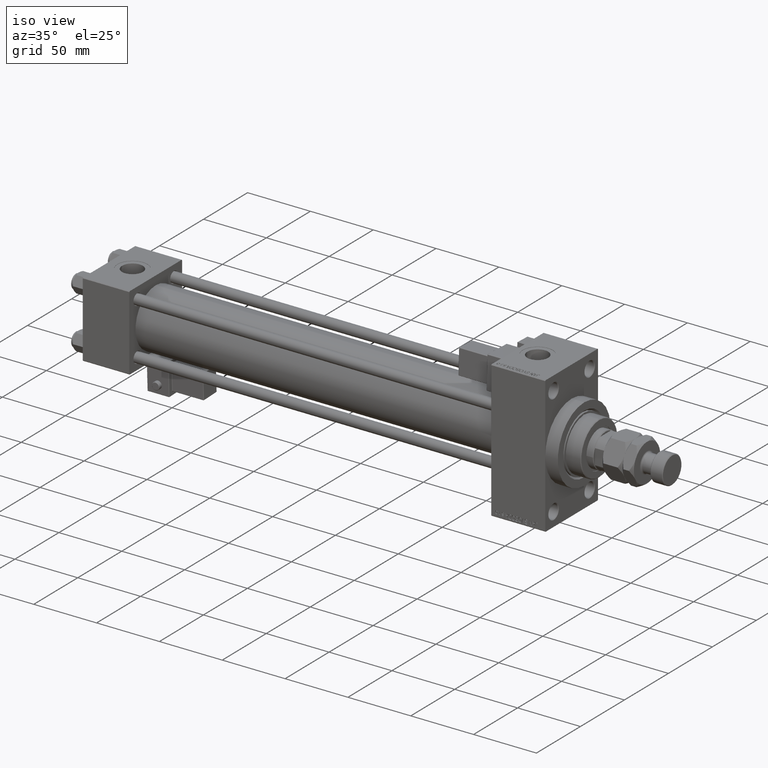
[diagram: clean part render]
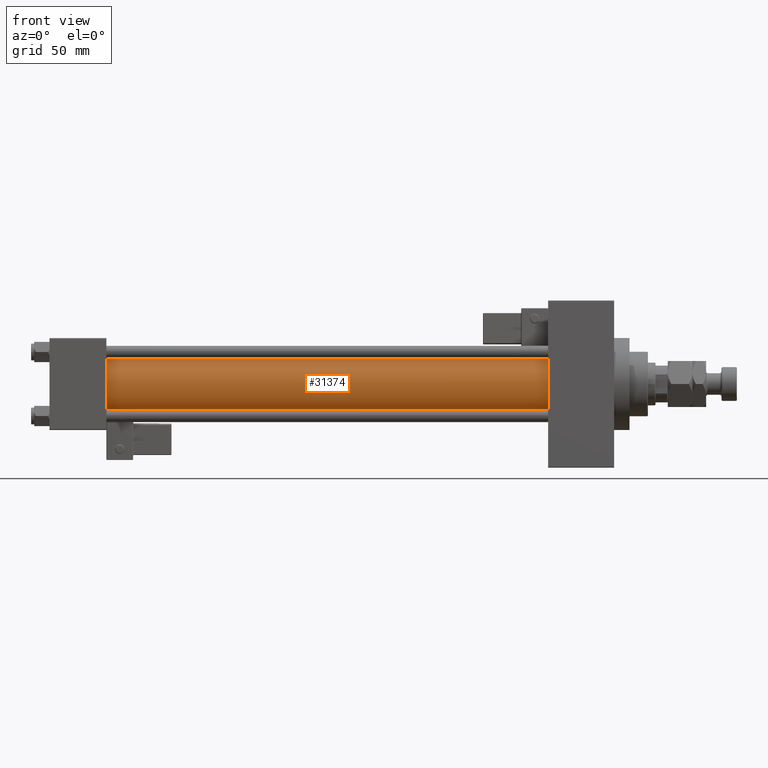
[diagram: tour spotlight — one face highlighted and labeled with its STEP entity id]
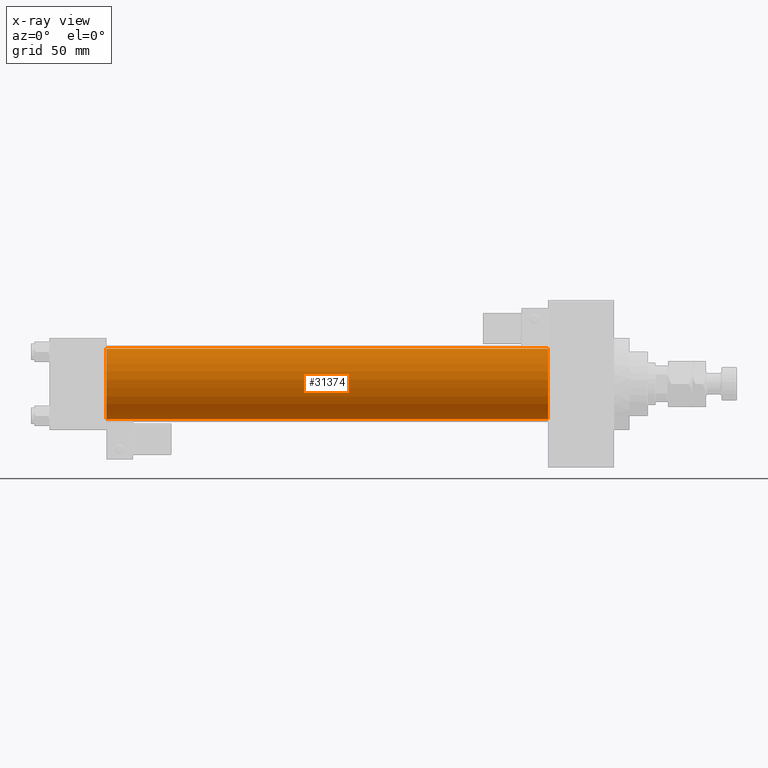
[diagram: x-ray of the same camera — body ghosted, this tour face saturated]
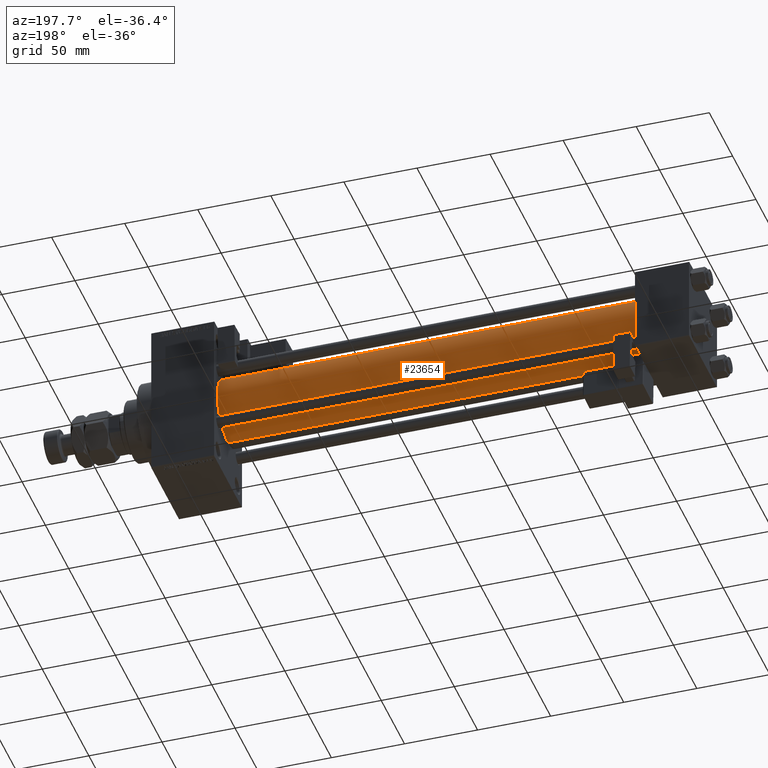
[diagram: tour spotlight — one face highlighted and labeled with its STEP entity id]
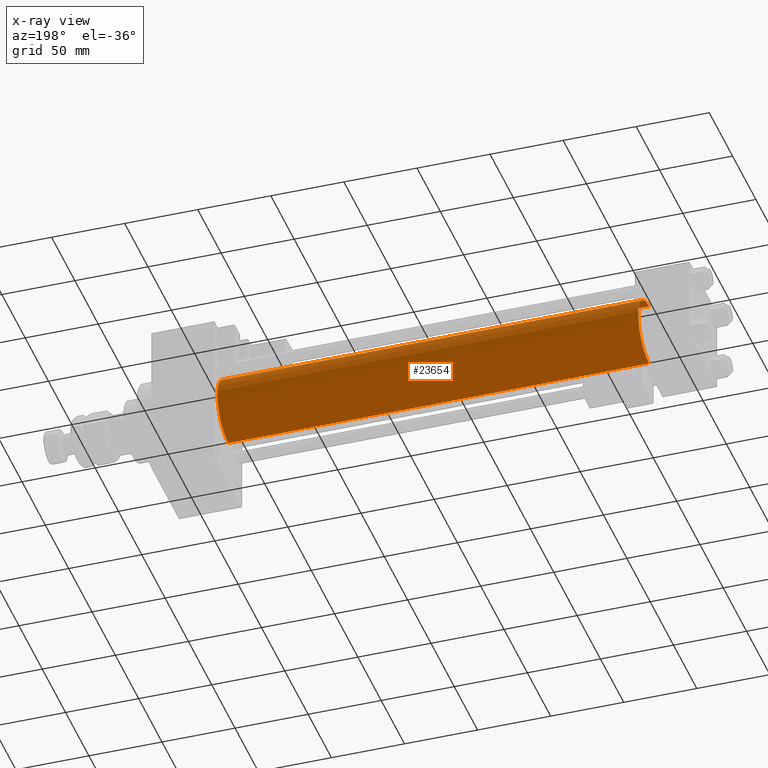
[diagram: x-ray of the same camera — body ghosted, this tour face saturated]
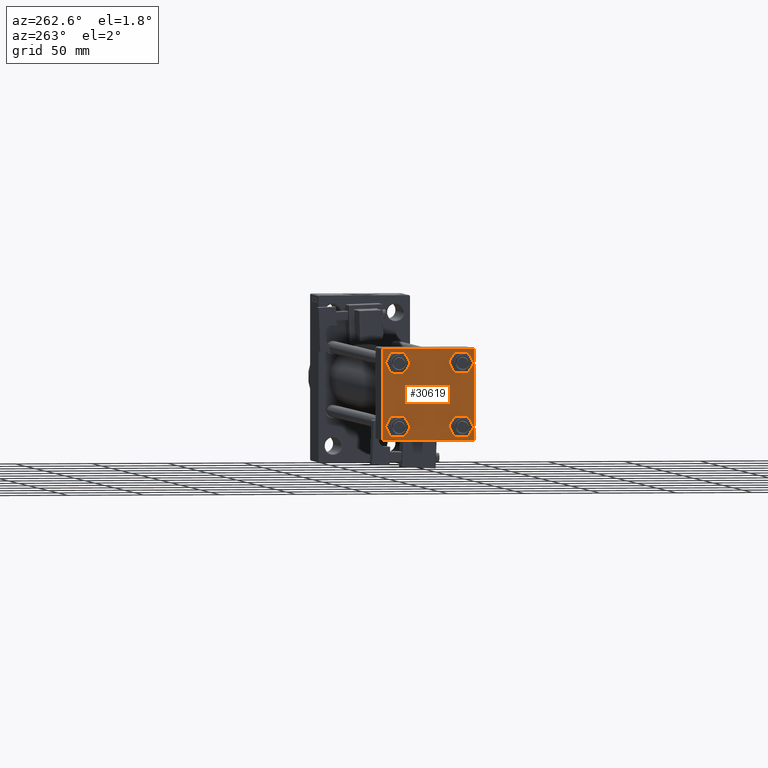
[diagram: tour spotlight — one face highlighted and labeled with its STEP entity id]
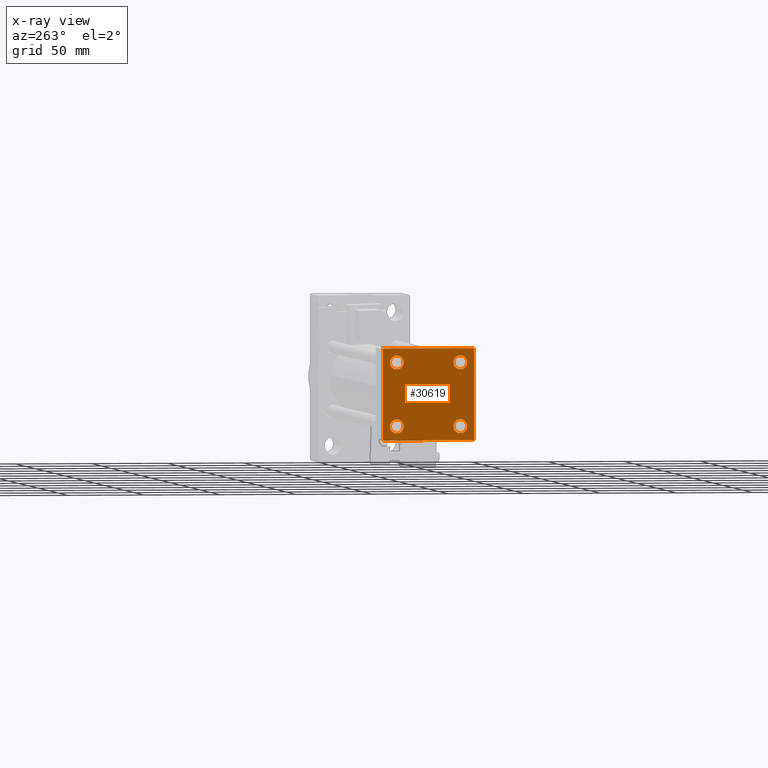
[diagram: x-ray of the same camera — body ghosted, this tour face saturated]
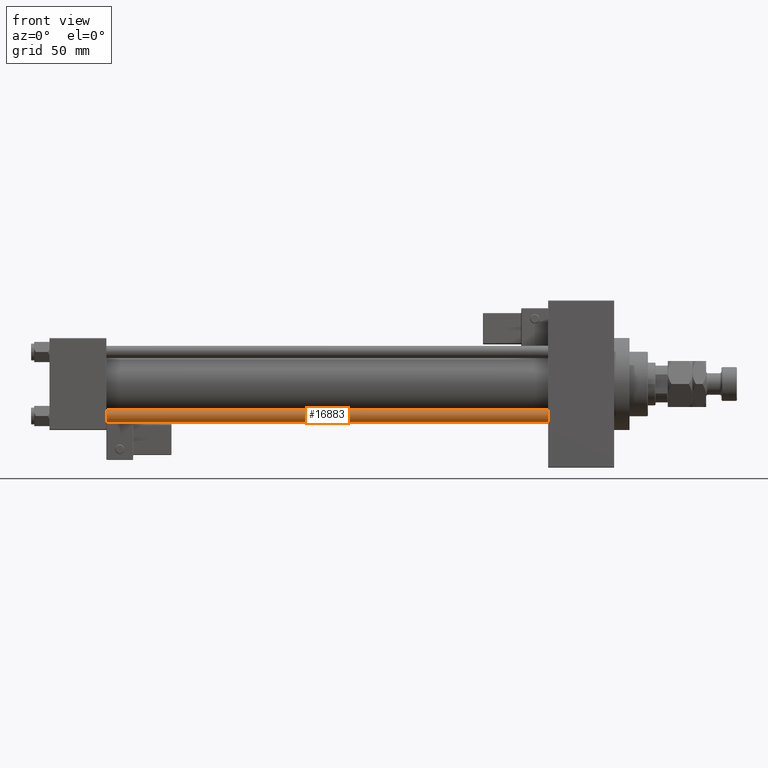
[diagram: tour spotlight — one face highlighted and labeled with its STEP entity id]
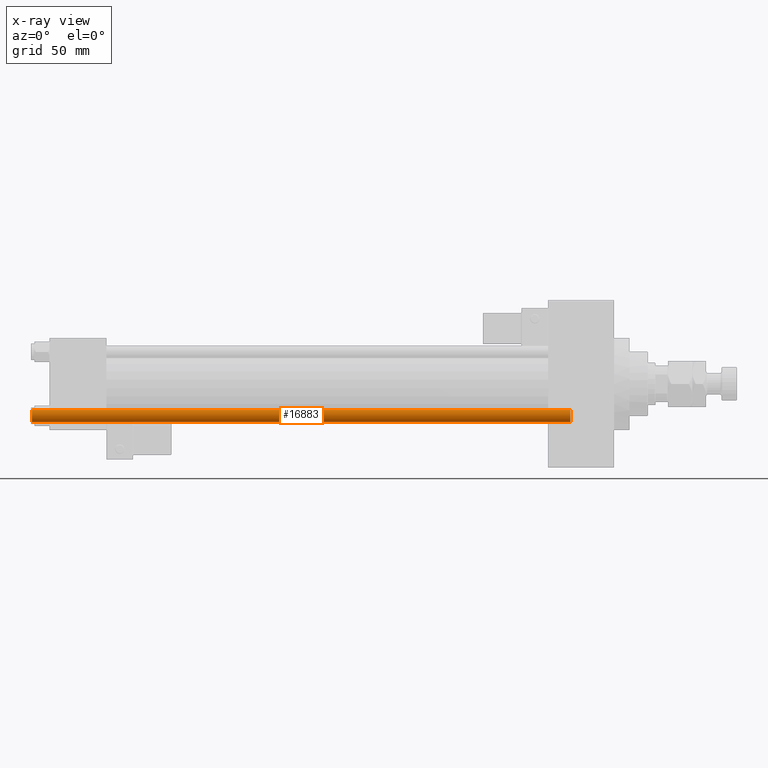
[diagram: x-ray of the same camera — body ghosted, this tour face saturated]
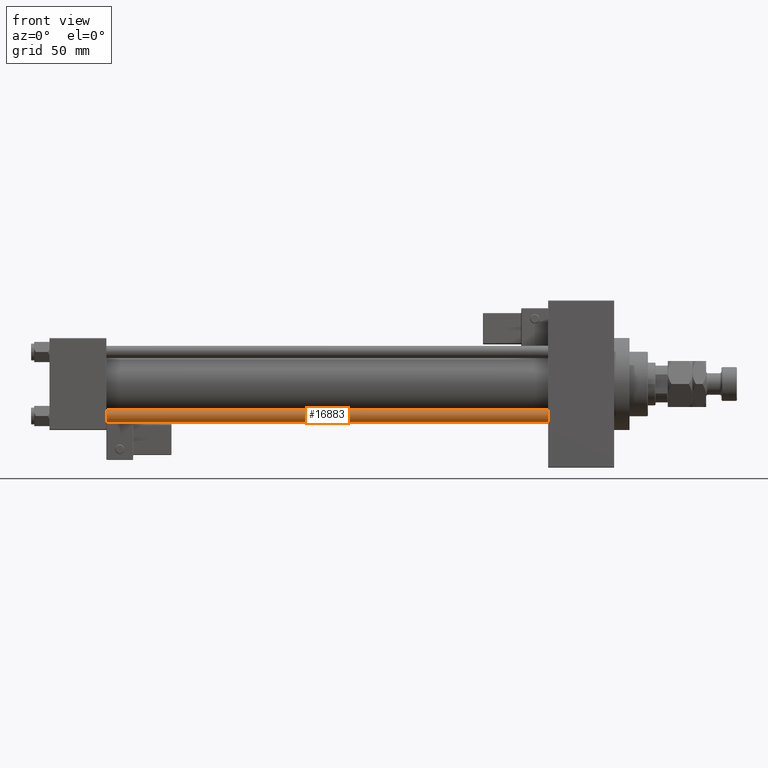
[diagram: tour spotlight — one face highlighted and labeled with its STEP entity id]
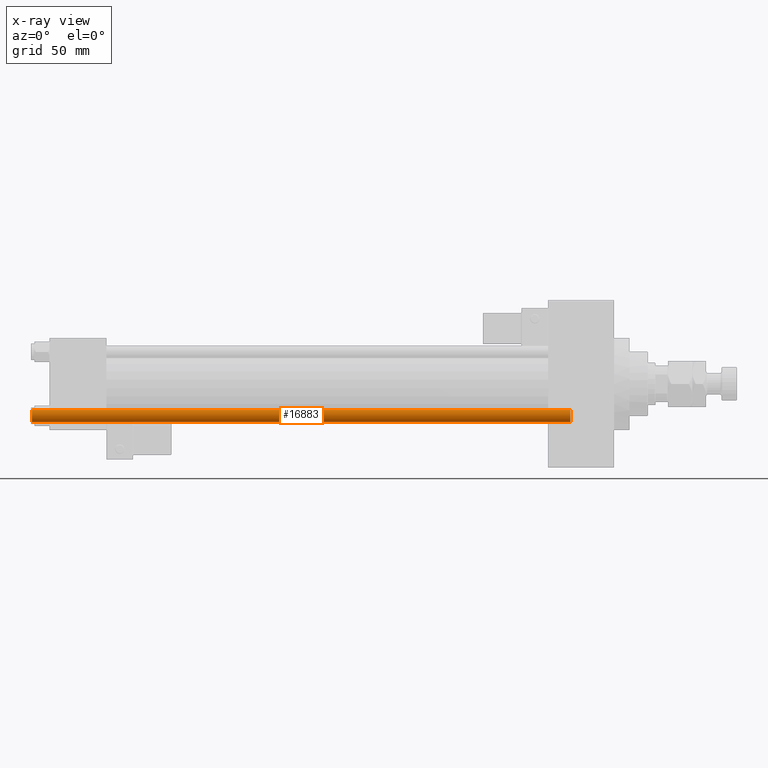
[diagram: x-ray of the same camera — body ghosted, this tour face saturated]
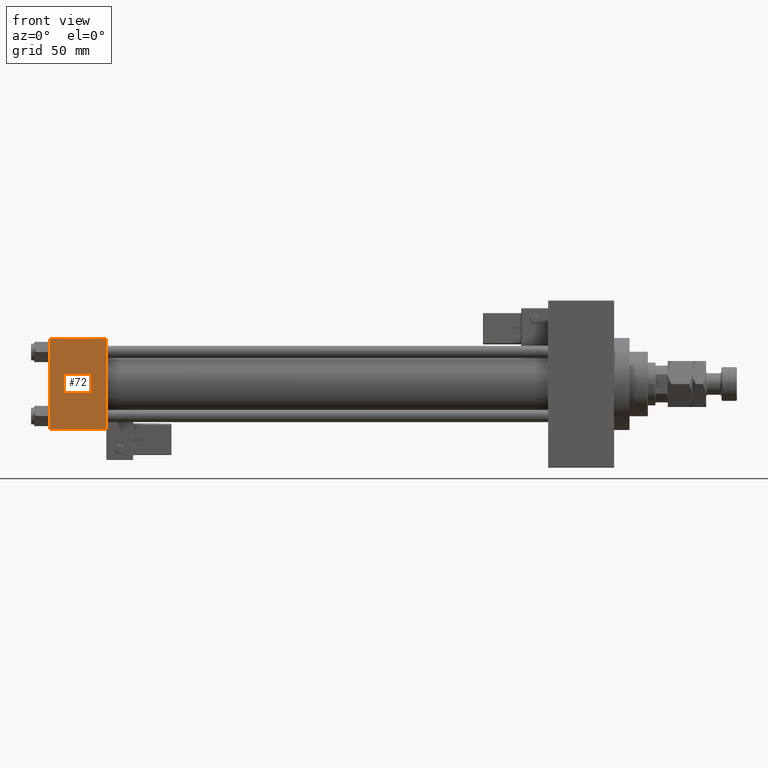
[diagram: tour spotlight — one face highlighted and labeled with its STEP entity id]
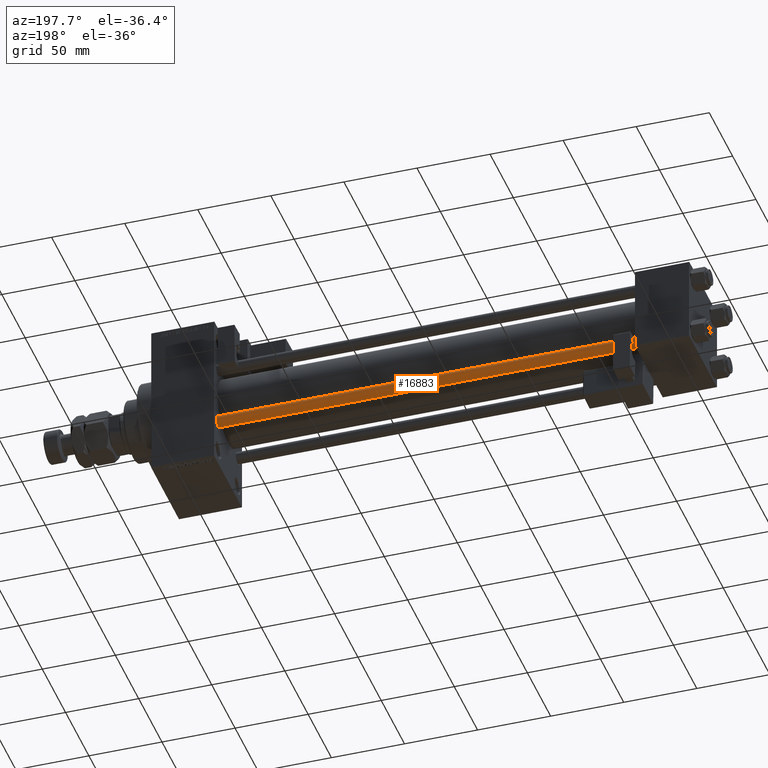
[diagram: tour spotlight — one face highlighted and labeled with its STEP entity id]
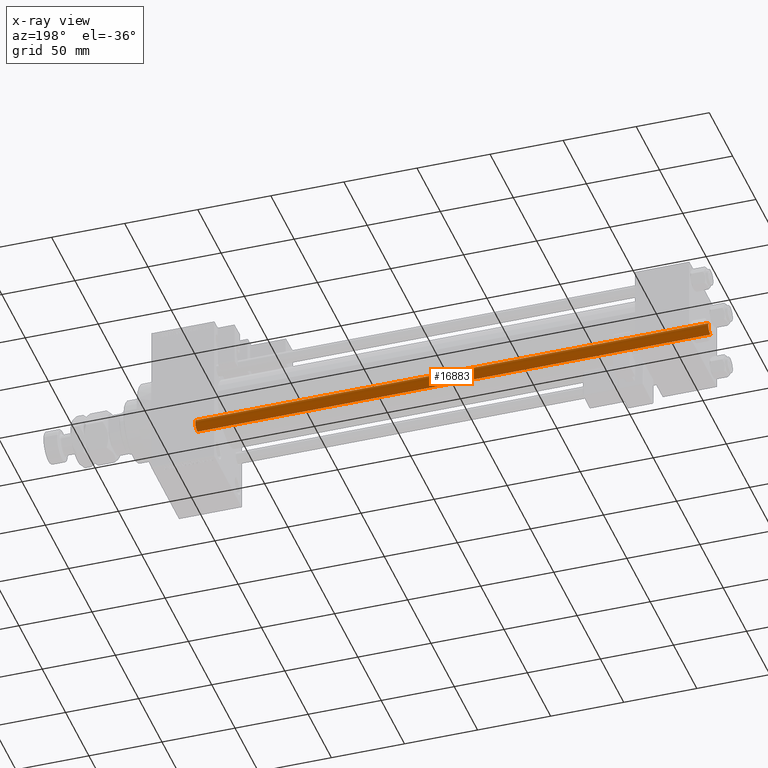
[diagram: x-ray of the same camera — body ghosted, this tour face saturated]
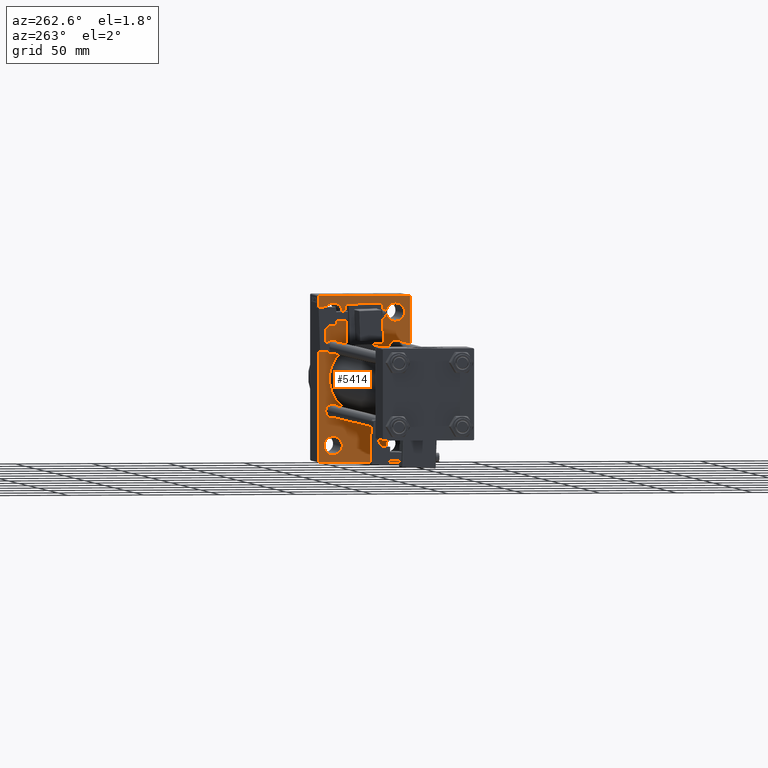
[diagram: tour spotlight — one face highlighted and labeled with its STEP entity id]
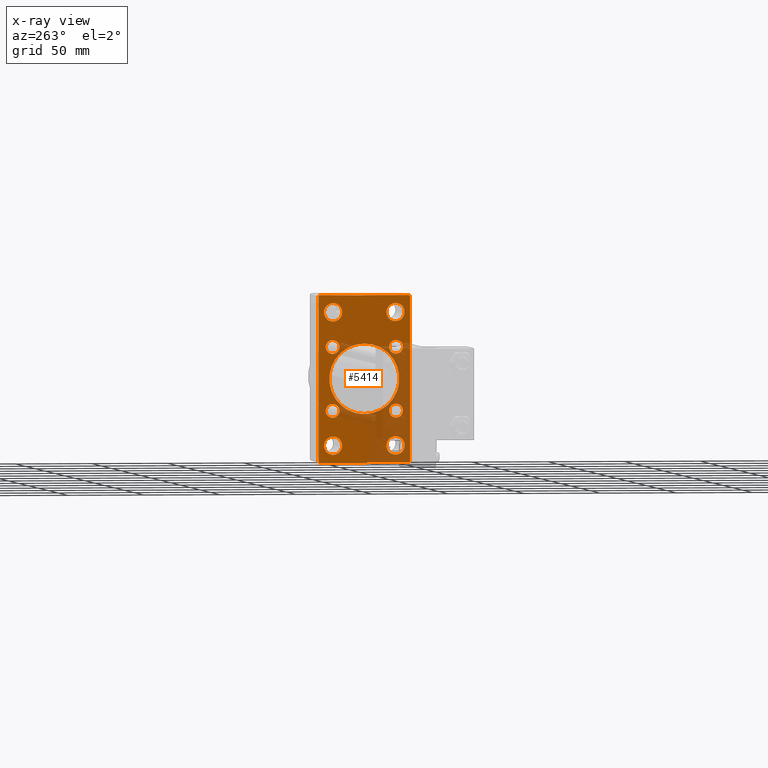
[diagram: x-ray of the same camera — body ghosted, this tour face saturated]
A machine part: a face-by-face anatomy tour. The part has 1320 B-rep faces; the first image is the clean iso view, then the 8 largest visible faces are spotlighted one at a time (largest first), each with its STEP entity span.

Face 1 — front view, entity #31374. An x-ray twin of the same camera follows (body ghosted, this face saturated) — the face is partly hidden behind the body. In plain terms, the highlighted cylindrical surface (edge-blend (fillet) strip) has radius 23 mm, axis along (-1, -0, -0).
Definition (entity closure, byte-faithful):
#1150 = DIRECTION ( 'NONE',  ( -1.000000000000000000, -0.000000000000000000, -0.000000000000000000 ) ) ;
#1564 = DIRECTION ( 'NONE',  ( 1.000000000000000000, -0.000000000000000000, 0.000000000000000000 ) ) ;
#2012 = CARTESIAN_POINT ( 'NONE',  ( 324.9999999999999432, 2.146024240737016609E-16, -23.00000000000000000 ) ) ;
#3557 = AXIS2_PLACEMENT_3D ( 'NONE', #22080, #1564, #5479 ) ;
#3870 = CARTESIAN_POINT ( 'NONE',  ( 324.9999999999999432, 2.146024240737016609E-16, -23.00000000000000000 ) ) ;
#3888 = EDGE_CURVE ( 'NONE', #31160, #18165, #27913, .T. ) ;
#5479 = DIRECTION ( 'NONE',  ( 0.000000000000000000, 0.000000000000000000, 1.000000000000000000 ) ) ;
#7216 = CARTESIAN_POINT ( 'NONE',  ( 324.9999999999999432, -2.602085213965210642E-15, 0.000000000000000000 ) ) ;
#8684 = ORIENTED_EDGE ( 'NONE', *, *, #9273, .F. ) ;
#9273 = EDGE_CURVE ( 'NONE', #31160, #33191, #31425, .T. ) ;
#9808 = DIRECTION ( 'NONE',  ( -1.000000000000000000, -0.000000000000000000, -0.000000000000000000 ) ) ;
#11866 = ORIENTED_EDGE ( 'NONE', *, *, #3888, .T. ) ;
#13090 = CARTESIAN_POINT ( 'NONE',  ( 324.9999999999999432, -2.602085213965210642E-15, 23.00000000000000000 ) ) ;
#13422 = CARTESIAN_POINT ( 'NONE',  ( 36.99999999999997868, -2.602085213965210642E-15, 23.00000000000000000 ) ) ;
#18087 = DIRECTION ( 'NONE',  ( 0.000000000000000000, 0.000000000000000000, -1.000000000000000000 ) ) ;
#18165 = VERTEX_POINT ( 'NONE', #13422 ) ;
#19814 = AXIS2_PLACEMENT_3D ( 'NONE', #34183, #38614, #18087 ) ;
#20093 = ORIENTED_EDGE ( 'NONE', *, *, #31212, .F. ) ;
#22080 = CARTESIAN_POINT ( 'NONE',  ( 36.99999999999997868, -2.602085213965210642E-15, 0.000000000000000000 ) ) ;
#22393 = VERTEX_POINT ( 'NONE', #44721 ) ;
#23059 = FACE_OUTER_BOUND ( 'NONE', #35448, .T. ) ;
#25262 = VECTOR ( 'NONE', #9808, 1000.000000000000000 ) ;
#27913 = LINE ( 'NONE', #13090, #45454 ) ;
#28060 = EDGE_CURVE ( 'NONE', #18165, #22393, #33381, .T. ) ;
#31160 = VERTEX_POINT ( 'NONE', #32241 ) ;
#31212 = EDGE_CURVE ( 'NONE', #33191, #22393, #45409, .T. ) ;
#31374 = ADVANCED_FACE ( 'NONE', ( #23059 ), #31602, .T. ) ;
#31425 = CIRCLE ( 'NONE', #19814, 23.00000000000000000 ) ;
#31602 = CYLINDRICAL_SURFACE ( 'NONE', #49322, 23.00000000000000000 ) ;
#31860 = DIRECTION ( 'NONE',  ( 0.000000000000000000, 0.000000000000000000, 1.000000000000000000 ) ) ;
#32241 = CARTESIAN_POINT ( 'NONE',  ( 324.9999999999999432, -2.602085213965210642E-15, 23.00000000000000000 ) ) ;
#33191 = VERTEX_POINT ( 'NONE', #3870 ) ;
#33381 = CIRCLE ( 'NONE', #3557, 23.00000000000000000 ) ;
#34183 = CARTESIAN_POINT ( 'NONE',  ( 324.9999999999999432, -2.602085213965210642E-15, 0.000000000000000000 ) ) ;
#35448 = EDGE_LOOP ( 'NONE', ( #20093, #8684, #11866, #49783 ) ) ;
#35759 = DIRECTION ( 'NONE',  ( -1.000000000000000000, -0.000000000000000000, -0.000000000000000000 ) ) ;
#38614 = DIRECTION ( 'NONE',  ( 1.000000000000000000, 0.000000000000000000, 0.000000000000000000 ) ) ;
#44721 = CARTESIAN_POINT ( 'NONE',  ( 36.99999999999997868, 2.146024240737016609E-16, -23.00000000000000000 ) ) ;
#45409 = LINE ( 'NONE', #2012, #25262 ) ;
#45454 = VECTOR ( 'NONE', #1150, 1000.000000000000000 ) ;
#49322 = AXIS2_PLACEMENT_3D ( 'NONE', #7216, #35759, #31860 ) ;
#49783 = ORIENTED_EDGE ( 'NONE', *, *, #28060, .T. ) ;

Face 2 — auxiliary view, entity #23654. An x-ray twin of the same camera follows (body ghosted, this face saturated) — the face is partly hidden behind the body. In plain terms, the highlighted cylindrical surface (edge-blend (fillet) strip) has radius 23 mm, axis along (-1, -0, -0).
Definition (entity closure, byte-faithful):
#147 = EDGE_CURVE ( 'NONE', #33191, #31160, #29952, .T. ) ;
#207 = AXIS2_PLACEMENT_3D ( 'NONE', #38401, #38145, #10600 ) ;
#277 = AXIS2_PLACEMENT_3D ( 'NONE', #18206, #34050, #49928 ) ;
#1150 = DIRECTION ( 'NONE',  ( -1.000000000000000000, -0.000000000000000000, -0.000000000000000000 ) ) ;
#2012 = CARTESIAN_POINT ( 'NONE',  ( 324.9999999999999432, 2.146024240737016609E-16, -23.00000000000000000 ) ) ;
#3870 = CARTESIAN_POINT ( 'NONE',  ( 324.9999999999999432, 2.146024240737016609E-16, -23.00000000000000000 ) ) ;
#3888 = EDGE_CURVE ( 'NONE', #31160, #18165, #27913, .T. ) ;
#6665 = DIRECTION ( 'NONE',  ( 0.000000000000000000, 0.000000000000000000, -1.000000000000000000 ) ) ;
#7181 = CARTESIAN_POINT ( 'NONE',  ( 324.9999999999999432, -2.602085213965210642E-15, 0.000000000000000000 ) ) ;
#9808 = DIRECTION ( 'NONE',  ( -1.000000000000000000, -0.000000000000000000, -0.000000000000000000 ) ) ;
#10600 = DIRECTION ( 'NONE',  ( 0.000000000000000000, 0.000000000000000000, 1.000000000000000000 ) ) ;
#13090 = CARTESIAN_POINT ( 'NONE',  ( 324.9999999999999432, -2.602085213965210642E-15, 23.00000000000000000 ) ) ;
#13422 = CARTESIAN_POINT ( 'NONE',  ( 36.99999999999997868, -2.602085213965210642E-15, 23.00000000000000000 ) ) ;
#14197 = AXIS2_PLACEMENT_3D ( 'NONE', #7181, #23021, #6665 ) ;
#15027 = CYLINDRICAL_SURFACE ( 'NONE', #207, 23.00000000000000000 ) ;
#18165 = VERTEX_POINT ( 'NONE', #13422 ) ;
#18206 = CARTESIAN_POINT ( 'NONE',  ( 36.99999999999997868, -2.602085213965210642E-15, 0.000000000000000000 ) ) ;
#22393 = VERTEX_POINT ( 'NONE', #44721 ) ;
#23021 = DIRECTION ( 'NONE',  ( 1.000000000000000000, 0.000000000000000000, 0.000000000000000000 ) ) ;
#23249 = ORIENTED_EDGE ( 'NONE', *, *, #3888, .F. ) ;
#23654 = ADVANCED_FACE ( 'NONE', ( #34494 ), #15027, .T. ) ;
#25262 = VECTOR ( 'NONE', #9808, 1000.000000000000000 ) ;
#25735 = EDGE_CURVE ( 'NONE', #22393, #18165, #42609, .T. ) ;
#27913 = LINE ( 'NONE', #13090, #45454 ) ;
#29952 = CIRCLE ( 'NONE', #14197, 23.00000000000000000 ) ;
#31160 = VERTEX_POINT ( 'NONE', #32241 ) ;
#31212 = EDGE_CURVE ( 'NONE', #33191, #22393, #45409, .T. ) ;
#32241 = CARTESIAN_POINT ( 'NONE',  ( 324.9999999999999432, -2.602085213965210642E-15, 23.00000000000000000 ) ) ;
#33191 = VERTEX_POINT ( 'NONE', #3870 ) ;
#34050 = DIRECTION ( 'NONE',  ( 1.000000000000000000, -0.000000000000000000, 0.000000000000000000 ) ) ;
#34494 = FACE_OUTER_BOUND ( 'NONE', #35952, .T. ) ;
#35952 = EDGE_LOOP ( 'NONE', ( #39029, #48558, #37160, #23249 ) ) ;
#37160 = ORIENTED_EDGE ( 'NONE', *, *, #25735, .T. ) ;
#38145 = DIRECTION ( 'NONE',  ( -1.000000000000000000, -0.000000000000000000, -0.000000000000000000 ) ) ;
#38401 = CARTESIAN_POINT ( 'NONE',  ( 324.9999999999999432, -2.602085213965210642E-15, 0.000000000000000000 ) ) ;
#39029 = ORIENTED_EDGE ( 'NONE', *, *, #147, .F. ) ;
#42609 = CIRCLE ( 'NONE', #277, 23.00000000000000000 ) ;
#44721 = CARTESIAN_POINT ( 'NONE',  ( 36.99999999999997868, 2.146024240737016609E-16, -23.00000000000000000 ) ) ;
#45409 = LINE ( 'NONE', #2012, #25262 ) ;
#45454 = VECTOR ( 'NONE', #1150, 1000.000000000000000 ) ;
#48558 = ORIENTED_EDGE ( 'NONE', *, *, #31212, .T. ) ;
#49928 = DIRECTION ( 'NONE',  ( 0.000000000000000000, 0.000000000000000000, 1.000000000000000000 ) ) ;

Face 3 — auxiliary view, entity #30619. An x-ray twin of the same camera follows (body ghosted, this face saturated) — the face is partly hidden behind the body. In plain terms, the highlighted planar face has unit normal (-1, 0, 0).
Definition (entity closure, byte-faithful):
#129 = CARTESIAN_POINT ( 'NONE',  ( 0.000000000000000000, 29.49999999999999289, 30.00000000000000000 ) ) ;
#556 = LINE ( 'NONE', #48133, #48176 ) ;
#832 = EDGE_CURVE ( 'NONE', #6773, #7968, #12606, .T. ) ;
#958 = EDGE_CURVE ( 'NONE', #16281, #8290, #12662, .T. ) ;
#1370 = VECTOR ( 'NONE', #20330, 1000.000000000000000 ) ;
#1547 = LINE ( 'NONE', #8827, #9812 ) ;
#1693 = CARTESIAN_POINT ( 'NONE',  ( 0.000000000000000000, -20.84999999999999076, 25.35000000000002274 ) ) ;
#1902 = AXIS2_PLACEMENT_3D ( 'NONE', #35318, #22604, #43138 ) ;
#2212 = EDGE_CURVE ( 'NONE', #10136, #31654, #4387, .T. ) ;
#3161 = CARTESIAN_POINT ( 'NONE',  ( 0.000000000000000000, -30.00000000000000000, 29.99999999999999289 ) ) ;
#3830 = ORIENTED_EDGE ( 'NONE', *, *, #39903, .T. ) ;
#4387 = CIRCLE ( 'NONE', #15176, 4.500000000000017764 ) ;
#4905 = ORIENTED_EDGE ( 'NONE', *, *, #832, .T. ) ;
#5023 = LINE ( 'NONE', #25945, #1370 ) ;
#5037 = EDGE_LOOP ( 'NONE', ( #4905, #37603 ) ) ;
#5359 = EDGE_LOOP ( 'NONE', ( #30913, #16975 ) ) ;
#6092 = EDGE_CURVE ( 'NONE', #46828, #8290, #22642, .T. ) ;
#6303 = CARTESIAN_POINT ( 'NONE',  ( 0.000000000000000000, 29.99999999999999289, 30.00000000000000000 ) ) ;
#6664 = EDGE_CURVE ( 'NONE', #48302, #16281, #26659, .T. ) ;
#6773 = VERTEX_POINT ( 'NONE', #18223 ) ;
#7632 = VECTOR ( 'NONE', #16063, 1000.000000000000114 ) ;
#7700 = EDGE_CURVE ( 'NONE', #23694, #17750, #47994, .T. ) ;
#7905 = FACE_BOUND ( 'NONE', #5359, .T. ) ;
#7968 = VERTEX_POINT ( 'NONE', #26182 ) ;
#8290 = VERTEX_POINT ( 'NONE', #34438 ) ;
#8787 = CARTESIAN_POINT ( 'NONE',  ( 0.000000000000000000, -20.84999999999999076, 20.85000000000000497 ) ) ;
#8827 = CARTESIAN_POINT ( 'NONE',  ( 0.000000000000000000, 29.74999999999957723, -29.75000000000040501 ) ) ;
#9045 = VERTEX_POINT ( 'NONE', #19947 ) ;
#9214 = LINE ( 'NONE', #34644, #38061 ) ;
#9561 = EDGE_CURVE ( 'NONE', #46828, #9045, #9214, .T. ) ;
#9812 = VECTOR ( 'NONE', #41048, 999.9999999999998863 ) ;
#10113 = AXIS2_PLACEMENT_3D ( 'NONE', #45966, #37894, #33994 ) ;
#10136 = VERTEX_POINT ( 'NONE', #43051 ) ;
#10757 = ORIENTED_EDGE ( 'NONE', *, *, #7700, .T. ) ;
#10901 = DIRECTION ( 'NONE',  ( 0.000000000000000000, 0.000000000000000000, 1.000000000000000000 ) ) ;
#11526 = CARTESIAN_POINT ( 'NONE',  ( 0.000000000000000000, 29.49999999999997868, -30.00000000000000000 ) ) ;
#12320 = EDGE_CURVE ( 'NONE', #46113, #23936, #556, .T. ) ;
#12606 = CIRCLE ( 'NONE', #10113, 4.500000000000017764 ) ;
#12662 = LINE ( 'NONE', #44121, #7632 ) ;
#13668 = CARTESIAN_POINT ( 'NONE',  ( 0.000000000000000000, 29.99999999999999289, 29.50000000000000000 ) ) ;
#13901 = DIRECTION ( 'NONE',  ( 0.000000000000000000, 0.000000000000000000, 1.000000000000000000 ) ) ;
#14177 = AXIS2_PLACEMENT_3D ( 'NONE', #14862, #22132, #30698 ) ;
#14367 = EDGE_LOOP ( 'NONE', ( #28608, #17355 ) ) ;
#14468 = EDGE_LOOP ( 'NONE', ( #10757, #32757 ) ) ;
#14657 = FACE_BOUND ( 'NONE', #14468, .T. ) ;
#14862 = CARTESIAN_POINT ( 'NONE',  ( 0.000000000000000000, 20.84999999999999787, -20.85000000000000142 ) ) ;
#15176 = AXIS2_PLACEMENT_3D ( 'NONE', #36794, #33644, #13901 ) ;
#15649 = CIRCLE ( 'NONE', #44686, 4.500000000000017764 ) ;
#16063 = DIRECTION ( 'NONE',  ( 0.000000000000000000, -0.7071067811865474617, 0.7071067811865474617 ) ) ;
#16281 = VERTEX_POINT ( 'NONE', #28085 ) ;
#16956 = DIRECTION ( 'NONE',  ( 0.000000000000000000, 0.000000000000000000, 1.000000000000000000 ) ) ;
#16975 = ORIENTED_EDGE ( 'NONE', *, *, #21298, .T. ) ;
#17223 = DIRECTION ( 'NONE',  ( 0.000000000000000000, -1.000000000000000000, -1.156482317317871725E-16 ) ) ;
#17355 = ORIENTED_EDGE ( 'NONE', *, *, #28339, .T. ) ;
#17450 = CARTESIAN_POINT ( 'NONE',  ( 0.000000000000000000, -20.84999999999999076, -20.85000000000000497 ) ) ;
#17666 = AXIS2_PLACEMENT_3D ( 'NONE', #8787, #21771, #40489 ) ;
#17750 = VERTEX_POINT ( 'NONE', #49362 ) ;
#18223 = CARTESIAN_POINT ( 'NONE',  ( 0.000000000000000000, 20.84999999999999787, 25.35000000000001918 ) ) ;
#18432 = VERTEX_POINT ( 'NONE', #28442 ) ;
#19076 = FACE_BOUND ( 'NONE', #14367, .T. ) ;
#19136 = DIRECTION ( 'NONE',  ( 0.000000000000000000, -1.000000000000000000, -1.156482317317871725E-16 ) ) ;
#19947 = CARTESIAN_POINT ( 'NONE',  ( 0.000000000000000000, -29.49999999999998579, 29.99999999999999289 ) ) ;
#20214 = AXIS2_PLACEMENT_3D ( 'NONE', #46375, #31534, #43248 ) ;
#20330 = DIRECTION ( 'NONE',  ( 0.000000000000000000, 0.000000000000000000, -1.000000000000000000 ) ) ;
#20859 = ORIENTED_EDGE ( 'NONE', *, *, #6092, .F. ) ;
#21298 = EDGE_CURVE ( 'NONE', #31654, #10136, #29931, .T. ) ;
#21379 = VECTOR ( 'NONE', #19136, 1000.000000000000000 ) ;
#21771 = DIRECTION ( 'NONE',  ( 1.000000000000000000, -0.000000000000000000, 0.000000000000000000 ) ) ;
#22132 = DIRECTION ( 'NONE',  ( 1.000000000000000000, -0.000000000000000000, 0.000000000000000000 ) ) ;
#22604 = DIRECTION ( 'NONE',  ( 1.000000000000000000, -0.000000000000000000, 0.000000000000000000 ) ) ;
#22642 = LINE ( 'NONE', #3161, #23833 ) ;
#23694 = VERTEX_POINT ( 'NONE', #46739 ) ;
#23833 = VECTOR ( 'NONE', #38749, 1000.000000000000000 ) ;
#23936 = VERTEX_POINT ( 'NONE', #13668 ) ;
#24449 = CARTESIAN_POINT ( 'NONE',  ( 0.000000000000000000, -20.84999999999999076, 16.34999999999998721 ) ) ;
#25288 = ORIENTED_EDGE ( 'NONE', *, *, #47825, .T. ) ;
#25945 = CARTESIAN_POINT ( 'NONE',  ( 0.000000000000000000, 29.99999999999999289, 30.00000000000000000 ) ) ;
#26034 = ORIENTED_EDGE ( 'NONE', *, *, #6664, .T. ) ;
#26182 = CARTESIAN_POINT ( 'NONE',  ( 0.000000000000000000, 20.84999999999999787, 16.34999999999998366 ) ) ;
#26659 = LINE ( 'NONE', #42533, #21379 ) ;
#28085 = CARTESIAN_POINT ( 'NONE',  ( 0.000000000000000000, -29.50000000000000000, -30.00000000000000711 ) ) ;
#28158 = EDGE_LOOP ( 'NONE', ( #3830, #25288, #26034, #40508, #20859, #32417, #36325, #28716 ) ) ;
#28339 = EDGE_CURVE ( 'NONE', #49274, #40654, #31788, .T. ) ;
#28442 = CARTESIAN_POINT ( 'NONE',  ( 0.000000000000000000, 29.99999999999999289, -29.50000000000000000 ) ) ;
#28608 = ORIENTED_EDGE ( 'NONE', *, *, #38480, .T. ) ;
#28716 = ORIENTED_EDGE ( 'NONE', *, *, #12320, .T. ) ;
#28986 = EDGE_CURVE ( 'NONE', #17750, #23694, #39266, .T. ) ;
#29931 = CIRCLE ( 'NONE', #14177, 4.500000000000017764 ) ;
#30619 = ADVANCED_FACE ( 'NONE', ( #19076, #14657, #7905, #50275, #39347 ), #47406, .T. ) ;
#30698 = DIRECTION ( 'NONE',  ( 0.000000000000000000, 0.000000000000000000, 1.000000000000000000 ) ) ;
#30910 = EDGE_CURVE ( 'NONE', #46113, #9045, #33821, .T. ) ;
#30913 = ORIENTED_EDGE ( 'NONE', *, *, #2212, .T. ) ;
#31534 = DIRECTION ( 'NONE',  ( -1.000000000000000000, 0.000000000000000000, -0.000000000000000000 ) ) ;
#31654 = VERTEX_POINT ( 'NONE', #47671 ) ;
#31788 = CIRCLE ( 'NONE', #17666, 4.500000000000017764 ) ;
#31874 = VECTOR ( 'NONE', #17223, 1000.000000000000000 ) ;
#32417 = ORIENTED_EDGE ( 'NONE', *, *, #9561, .T. ) ;
#32757 = ORIENTED_EDGE ( 'NONE', *, *, #28986, .T. ) ;
#33644 = DIRECTION ( 'NONE',  ( 1.000000000000000000, -0.000000000000000000, 0.000000000000000000 ) ) ;
#33821 = LINE ( 'NONE', #6303, #31874 ) ;
#33994 = DIRECTION ( 'NONE',  ( 0.000000000000000000, 0.000000000000000000, 1.000000000000000000 ) ) ;
#34438 = CARTESIAN_POINT ( 'NONE',  ( 0.000000000000000000, -30.00000000000000000, -29.50000000000001776 ) ) ;
#34644 = CARTESIAN_POINT ( 'NONE',  ( -0.000000000000000000, -29.74999999999999645, 29.74999999999999645 ) ) ;
#35318 = CARTESIAN_POINT ( 'NONE',  ( 0.000000000000000000, -20.84999999999999076, -20.85000000000000497 ) ) ;
#36325 = ORIENTED_EDGE ( 'NONE', *, *, #30910, .F. ) ;
#36794 = CARTESIAN_POINT ( 'NONE',  ( 0.000000000000000000, 20.84999999999999787, -20.85000000000000142 ) ) ;
#37215 = CARTESIAN_POINT ( 'NONE',  ( 0.000000000000000000, 20.84999999999999787, 20.85000000000000142 ) ) ;
#37449 = DIRECTION ( 'NONE',  ( 1.000000000000000000, -0.000000000000000000, 0.000000000000000000 ) ) ;
#37603 = ORIENTED_EDGE ( 'NONE', *, *, #48364, .T. ) ;
#37894 = DIRECTION ( 'NONE',  ( 1.000000000000000000, -0.000000000000000000, 0.000000000000000000 ) ) ;
#37981 = AXIS2_PLACEMENT_3D ( 'NONE', #17450, #37449, #38732 ) ;
#38061 = VECTOR ( 'NONE', #49492, 1000.000000000000114 ) ;
#38480 = EDGE_CURVE ( 'NONE', #40654, #49274, #43786, .T. ) ;
#38702 = CARTESIAN_POINT ( 'NONE',  ( 0.000000000000000000, -20.84999999999999076, 20.85000000000000497 ) ) ;
#38732 = DIRECTION ( 'NONE',  ( 0.000000000000000000, 0.000000000000000000, 1.000000000000000000 ) ) ;
#38749 = DIRECTION ( 'NONE',  ( 0.000000000000000000, 0.000000000000000000, -1.000000000000000000 ) ) ;
#39266 = CIRCLE ( 'NONE', #1902, 4.500000000000017764 ) ;
#39347 = FACE_OUTER_BOUND ( 'NONE', #28158, .T. ) ;
#39903 = EDGE_CURVE ( 'NONE', #23936, #18432, #5023, .T. ) ;
#40489 = DIRECTION ( 'NONE',  ( 0.000000000000000000, 0.000000000000000000, 1.000000000000000000 ) ) ;
#40508 = ORIENTED_EDGE ( 'NONE', *, *, #958, .T. ) ;
#40654 = VERTEX_POINT ( 'NONE', #1693 ) ;
#40720 = CARTESIAN_POINT ( 'NONE',  ( 0.000000000000000000, -30.00000000000000000, 29.49999999999999289 ) ) ;
#41048 = DIRECTION ( 'NONE',  ( -0.000000000000000000, -0.7071067811865574537, -0.7071067811865376918 ) ) ;
#41080 = DIRECTION ( 'NONE',  ( 0.000000000000000000, 0.7071067811865474617, -0.7071067811865474617 ) ) ;
#42533 = CARTESIAN_POINT ( 'NONE',  ( 0.000000000000000000, 29.99999999999999289, -30.00000000000000000 ) ) ;
#43051 = CARTESIAN_POINT ( 'NONE',  ( 0.000000000000000000, 20.84999999999999787, -16.34999999999998366 ) ) ;
#43138 = DIRECTION ( 'NONE',  ( 0.000000000000000000, 0.000000000000000000, 1.000000000000000000 ) ) ;
#43248 = DIRECTION ( 'NONE',  ( -0.000000000000000000, 0.000000000000000000, 1.000000000000000000 ) ) ;
#43786 = CIRCLE ( 'NONE', #48763, 4.500000000000017764 ) ;
#44121 = CARTESIAN_POINT ( 'NONE',  ( 0.000000000000000000, -29.75000000000001066, -29.75000000000001066 ) ) ;
#44686 = AXIS2_PLACEMENT_3D ( 'NONE', #37215, #44757, #16956 ) ;
#44757 = DIRECTION ( 'NONE',  ( 1.000000000000000000, -0.000000000000000000, 0.000000000000000000 ) ) ;
#45966 = CARTESIAN_POINT ( 'NONE',  ( 0.000000000000000000, 20.84999999999999787, 20.85000000000000142 ) ) ;
#46113 = VERTEX_POINT ( 'NONE', #129 ) ;
#46375 = CARTESIAN_POINT ( 'NONE',  ( 0.000000000000000000, 0.000000000000000000, 0.000000000000000000 ) ) ;
#46519 = DIRECTION ( 'NONE',  ( 1.000000000000000000, -0.000000000000000000, 0.000000000000000000 ) ) ;
#46739 = CARTESIAN_POINT ( 'NONE',  ( 0.000000000000000000, -20.84999999999999076, -16.34999999999998721 ) ) ;
#46828 = VERTEX_POINT ( 'NONE', #40720 ) ;
#47406 = PLANE ( 'NONE',  #20214 ) ;
#47671 = CARTESIAN_POINT ( 'NONE',  ( 0.000000000000000000, 20.84999999999999787, -25.35000000000001918 ) ) ;
#47825 = EDGE_CURVE ( 'NONE', #18432, #48302, #1547, .T. ) ;
#47994 = CIRCLE ( 'NONE', #37981, 4.500000000000017764 ) ;
#48133 = CARTESIAN_POINT ( 'NONE',  ( 0.000000000000000000, 29.74999999999999645, 29.74999999999999645 ) ) ;
#48176 = VECTOR ( 'NONE', #41080, 1000.000000000000114 ) ;
#48302 = VERTEX_POINT ( 'NONE', #11526 ) ;
#48364 = EDGE_CURVE ( 'NONE', #7968, #6773, #15649, .T. ) ;
#48763 = AXIS2_PLACEMENT_3D ( 'NONE', #38702, #46519, #10901 ) ;
#49274 = VERTEX_POINT ( 'NONE', #24449 ) ;
#49362 = CARTESIAN_POINT ( 'NONE',  ( 0.000000000000000000, -20.84999999999999076, -25.35000000000002274 ) ) ;
#49492 = DIRECTION ( 'NONE',  ( -0.000000000000000000, 0.7071067811865474617, 0.7071067811865474617 ) ) ;
#50275 = FACE_BOUND ( 'NONE', #5037, .T. ) ;

Face 4 — front view, entity #16883. An x-ray twin of the same camera follows (body ghosted, this face saturated) — the face is partly hidden behind the body. In plain terms, the highlighted cylindrical surface (edge-blend (fillet) strip) has radius 4 mm, axis along (1, 0, 0).
Definition (entity closure, byte-faithful):
#1614 = CIRCLE ( 'NONE', #5760, 4.000000000000000000 ) ;
#2182 = DIRECTION ( 'NONE',  ( -0.000000000000000000, -0.000000000000000000, -1.000000000000000000 ) ) ;
#2555 = CARTESIAN_POINT ( 'NONE',  ( 4.000000000000000000, 4.898587196589412829E-16, 0.5000000000000004441 ) ) ;
#5317 = VECTOR ( 'NONE', #23848, 1000.000000000000000 ) ;
#5760 = AXIS2_PLACEMENT_3D ( 'NONE', #50481, #41892, #30432 ) ;
#8071 = ORIENTED_EDGE ( 'NONE', *, *, #18068, .F. ) ;
#8273 = EDGE_CURVE ( 'NONE', #25211, #12315, #50476, .T. ) ;
#9741 = CARTESIAN_POINT ( 'NONE',  ( 4.000000000000000000, 4.898587196589412829E-16, 351.5000000000000000 ) ) ;
#10573 = VERTEX_POINT ( 'NONE', #33186 ) ;
#11441 = AXIS2_PLACEMENT_3D ( 'NONE', #14180, #45895, #50313 ) ;
#12315 = VERTEX_POINT ( 'NONE', #20300 ) ;
#13478 = FACE_OUTER_BOUND ( 'NONE', #13866, .T. ) ;
#13866 = EDGE_LOOP ( 'NONE', ( #33752, #17619, #35514, #8071 ) ) ;
#14180 = CARTESIAN_POINT ( 'NONE',  ( 0.000000000000000000, 0.000000000000000000, 0.5000000000000004441 ) ) ;
#16062 = CARTESIAN_POINT ( 'NONE',  ( -4.000000000000000000, 0.000000000000000000, 352.0000000000000000 ) ) ;
#16883 = ADVANCED_FACE ( 'NONE', ( #13478 ), #21024, .T. ) ;
#17619 = ORIENTED_EDGE ( 'NONE', *, *, #27419, .T. ) ;
#18068 = EDGE_CURVE ( 'NONE', #10573, #12315, #51156, .T. ) ;
#20300 = CARTESIAN_POINT ( 'NONE',  ( -4.000000000000000000, 0.000000000000000000, 0.5000000000000004441 ) ) ;
#21024 = CYLINDRICAL_SURFACE ( 'NONE', #48416, 4.000000000000000000 ) ;
#23848 = DIRECTION ( 'NONE',  ( -0.000000000000000000, -0.000000000000000000, -1.000000000000000000 ) ) ;
#25211 = VERTEX_POINT ( 'NONE', #2555 ) ;
#25575 = LINE ( 'NONE', #37784, #39196 ) ;
#27419 = EDGE_CURVE ( 'NONE', #31552, #25211, #25575, .T. ) ;
#30432 = DIRECTION ( 'NONE',  ( 1.000000000000000000, 0.000000000000000000, 0.000000000000000000 ) ) ;
#31552 = VERTEX_POINT ( 'NONE', #9741 ) ;
#33186 = CARTESIAN_POINT ( 'NONE',  ( -4.000000000000000000, 0.000000000000000000, 351.5000000000000000 ) ) ;
#33752 = ORIENTED_EDGE ( 'NONE', *, *, #50220, .T. ) ;
#35514 = ORIENTED_EDGE ( 'NONE', *, *, #8273, .T. ) ;
#37388 = DIRECTION ( 'NONE',  ( -1.000000000000000000, 0.000000000000000000, 0.000000000000000000 ) ) ;
#37784 = CARTESIAN_POINT ( 'NONE',  ( 4.000000000000000000, 4.898587196589412829E-16, 352.0000000000000000 ) ) ;
#39196 = VECTOR ( 'NONE', #2182, 1000.000000000000000 ) ;
#41035 = DIRECTION ( 'NONE',  ( -0.000000000000000000, -0.000000000000000000, -1.000000000000000000 ) ) ;
#41892 = DIRECTION ( 'NONE',  ( 0.000000000000000000, 0.000000000000000000, -1.000000000000000000 ) ) ;
#45187 = CARTESIAN_POINT ( 'NONE',  ( 0.000000000000000000, 0.000000000000000000, 352.0000000000000000 ) ) ;
#45895 = DIRECTION ( 'NONE',  ( -0.000000000000000000, -0.000000000000000000, 1.000000000000000000 ) ) ;
#48416 = AXIS2_PLACEMENT_3D ( 'NONE', #45187, #41035, #37388 ) ;
#50220 = EDGE_CURVE ( 'NONE', #10573, #31552, #1614, .T. ) ;
#50313 = DIRECTION ( 'NONE',  ( 1.000000000000000000, 0.000000000000000000, 0.000000000000000000 ) ) ;
#50476 = CIRCLE ( 'NONE', #11441, 4.000000000000000000 ) ;
#50481 = CARTESIAN_POINT ( 'NONE',  ( 0.000000000000000000, 0.000000000000000000, 351.5000000000000000 ) ) ;
#51156 = LINE ( 'NONE', #16062, #5317 ) ;

Face 5 — front view, entity #16883. An x-ray twin of the same camera follows (body ghosted, this face saturated) — the face is partly hidden behind the body. In plain terms, the highlighted cylindrical surface (edge-blend (fillet) strip) has radius 4 mm, axis along (-1, 0, 0).
Definition (entity closure, byte-faithful):
#1614 = CIRCLE ( 'NONE', #5760, 4.000000000000000000 ) ;
#2182 = DIRECTION ( 'NONE',  ( -0.000000000000000000, -0.000000000000000000, -1.000000000000000000 ) ) ;
#2555 = CARTESIAN_POINT ( 'NONE',  ( 4.000000000000000000, 4.898587196589412829E-16, 0.5000000000000004441 ) ) ;
#5317 = VECTOR ( 'NONE', #23848, 1000.000000000000000 ) ;
#5760 = AXIS2_PLACEMENT_3D ( 'NONE', #50481, #41892, #30432 ) ;
#8071 = ORIENTED_EDGE ( 'NONE', *, *, #18068, .F. ) ;
#8273 = EDGE_CURVE ( 'NONE', #25211, #12315, #50476, .T. ) ;
#9741 = CARTESIAN_POINT ( 'NONE',  ( 4.000000000000000000, 4.898587196589412829E-16, 351.5000000000000000 ) ) ;
#10573 = VERTEX_POINT ( 'NONE', #33186 ) ;
#11441 = AXIS2_PLACEMENT_3D ( 'NONE', #14180, #45895, #50313 ) ;
#12315 = VERTEX_POINT ( 'NONE', #20300 ) ;
#13478 = FACE_OUTER_BOUND ( 'NONE', #13866, .T. ) ;
#13866 = EDGE_LOOP ( 'NONE', ( #33752, #17619, #35514, #8071 ) ) ;
#14180 = CARTESIAN_POINT ( 'NONE',  ( 0.000000000000000000, 0.000000000000000000, 0.5000000000000004441 ) ) ;
#16062 = CARTESIAN_POINT ( 'NONE',  ( -4.000000000000000000, 0.000000000000000000, 352.0000000000000000 ) ) ;
#16883 = ADVANCED_FACE ( 'NONE', ( #13478 ), #21024, .T. ) ;
#17619 = ORIENTED_EDGE ( 'NONE', *, *, #27419, .T. ) ;
#18068 = EDGE_CURVE ( 'NONE', #10573, #12315, #51156, .T. ) ;
#20300 = CARTESIAN_POINT ( 'NONE',  ( -4.000000000000000000, 0.000000000000000000, 0.5000000000000004441 ) ) ;
#21024 = CYLINDRICAL_SURFACE ( 'NONE', #48416, 4.000000000000000000 ) ;
#23848 = DIRECTION ( 'NONE',  ( -0.000000000000000000, -0.000000000000000000, -1.000000000000000000 ) ) ;
#25211 = VERTEX_POINT ( 'NONE', #2555 ) ;
#25575 = LINE ( 'NONE', #37784, #39196 ) ;
#27419 = EDGE_CURVE ( 'NONE', #31552, #25211, #25575, .T. ) ;
#30432 = DIRECTION ( 'NONE',  ( 1.000000000000000000, 0.000000000000000000, 0.000000000000000000 ) ) ;
#31552 = VERTEX_POINT ( 'NONE', #9741 ) ;
#33186 = CARTESIAN_POINT ( 'NONE',  ( -4.000000000000000000, 0.000000000000000000, 351.5000000000000000 ) ) ;
#33752 = ORIENTED_EDGE ( 'NONE', *, *, #50220, .T. ) ;
#35514 = ORIENTED_EDGE ( 'NONE', *, *, #8273, .T. ) ;
#37388 = DIRECTION ( 'NONE',  ( -1.000000000000000000, 0.000000000000000000, 0.000000000000000000 ) ) ;
#37784 = CARTESIAN_POINT ( 'NONE',  ( 4.000000000000000000, 4.898587196589412829E-16, 352.0000000000000000 ) ) ;
#39196 = VECTOR ( 'NONE', #2182, 1000.000000000000000 ) ;
#41035 = DIRECTION ( 'NONE',  ( -0.000000000000000000, -0.000000000000000000, -1.000000000000000000 ) ) ;
#41892 = DIRECTION ( 'NONE',  ( 0.000000000000000000, 0.000000000000000000, -1.000000000000000000 ) ) ;
#45187 = CARTESIAN_POINT ( 'NONE',  ( 0.000000000000000000, 0.000000000000000000, 352.0000000000000000 ) ) ;
#45895 = DIRECTION ( 'NONE',  ( -0.000000000000000000, -0.000000000000000000, 1.000000000000000000 ) ) ;
#48416 = AXIS2_PLACEMENT_3D ( 'NONE', #45187, #41035, #37388 ) ;
#50220 = EDGE_CURVE ( 'NONE', #10573, #31552, #1614, .T. ) ;
#50313 = DIRECTION ( 'NONE',  ( 1.000000000000000000, 0.000000000000000000, 0.000000000000000000 ) ) ;
#50476 = CIRCLE ( 'NONE', #11441, 4.000000000000000000 ) ;
#50481 = CARTESIAN_POINT ( 'NONE',  ( 0.000000000000000000, 0.000000000000000000, 351.5000000000000000 ) ) ;
#51156 = LINE ( 'NONE', #16062, #5317 ) ;

Face 6 — front view, entity #72. In plain terms, the highlighted planar face has unit normal (0, 1, 0).
Definition (entity closure, byte-faithful):
#72 = ADVANCED_FACE ( 'NONE', ( #44871 ), #49799, .F. ) ;
#1235 = DIRECTION ( 'NONE',  ( 1.000000000000000000, 0.000000000000000000, 0.000000000000000000 ) ) ;
#3161 = CARTESIAN_POINT ( 'NONE',  ( 0.000000000000000000, -30.00000000000000000, 29.99999999999999289 ) ) ;
#4378 = CARTESIAN_POINT ( 'NONE',  ( 37.00000000000000000, -30.00000000000000000, -29.50000000000001776 ) ) ;
#6092 = EDGE_CURVE ( 'NONE', #46828, #8290, #22642, .T. ) ;
#8290 = VERTEX_POINT ( 'NONE', #34438 ) ;
#8841 = LINE ( 'NONE', #24950, #48682 ) ;
#10586 = VERTEX_POINT ( 'NONE', #16841 ) ;
#15315 = EDGE_CURVE ( 'NONE', #8290, #10586, #24624, .T. ) ;
#16841 = CARTESIAN_POINT ( 'NONE',  ( 37.00000000000000000, -30.00000000000000000, -29.50000000000001776 ) ) ;
#17353 = VERTEX_POINT ( 'NONE', #45641 ) ;
#18948 = ORIENTED_EDGE ( 'NONE', *, *, #33801, .T. ) ;
#21715 = ORIENTED_EDGE ( 'NONE', *, *, #39975, .F. ) ;
#22231 = EDGE_LOOP ( 'NONE', ( #50505, #34948, #21715, #18948 ) ) ;
#22642 = LINE ( 'NONE', #3161, #23833 ) ;
#23122 = DIRECTION ( 'NONE',  ( -1.000000000000000000, 0.000000000000000000, 0.000000000000000000 ) ) ;
#23833 = VECTOR ( 'NONE', #38749, 1000.000000000000000 ) ;
#24624 = LINE ( 'NONE', #4378, #48497 ) ;
#24950 = CARTESIAN_POINT ( 'NONE',  ( 37.00000000000000000, -30.00000000000000000, 29.99999999999999289 ) ) ;
#26477 = LINE ( 'NONE', #30116, #50247 ) ;
#29143 = AXIS2_PLACEMENT_3D ( 'NONE', #41978, #29266, #30020 ) ;
#29266 = DIRECTION ( 'NONE',  ( -0.000000000000000000, 1.000000000000000000, 0.000000000000000000 ) ) ;
#30020 = DIRECTION ( 'NONE',  ( 0.000000000000000000, -0.000000000000000000, 1.000000000000000000 ) ) ;
#30116 = CARTESIAN_POINT ( 'NONE',  ( 37.00000000000000000, -30.00000000000000000, 29.49999999999999289 ) ) ;
#33801 = EDGE_CURVE ( 'NONE', #17353, #46828, #26477, .T. ) ;
#34438 = CARTESIAN_POINT ( 'NONE',  ( 0.000000000000000000, -30.00000000000000000, -29.50000000000001776 ) ) ;
#34948 = ORIENTED_EDGE ( 'NONE', *, *, #15315, .T. ) ;
#38749 = DIRECTION ( 'NONE',  ( 0.000000000000000000, 0.000000000000000000, -1.000000000000000000 ) ) ;
#39975 = EDGE_CURVE ( 'NONE', #17353, #10586, #8841, .T. ) ;
#40720 = CARTESIAN_POINT ( 'NONE',  ( 0.000000000000000000, -30.00000000000000000, 29.49999999999999289 ) ) ;
#40803 = DIRECTION ( 'NONE',  ( 0.000000000000000000, 0.000000000000000000, -1.000000000000000000 ) ) ;
#41978 = CARTESIAN_POINT ( 'NONE',  ( 37.00000000000000000, -30.00000000000000000, 29.99999999999999289 ) ) ;
#44871 = FACE_OUTER_BOUND ( 'NONE', #22231, .T. ) ;
#45641 = CARTESIAN_POINT ( 'NONE',  ( 37.00000000000000000, -30.00000000000000000, 29.49999999999999289 ) ) ;
#46828 = VERTEX_POINT ( 'NONE', #40720 ) ;
#48497 = VECTOR ( 'NONE', #1235, 1000.000000000000000 ) ;
#48682 = VECTOR ( 'NONE', #40803, 1000.000000000000000 ) ;
#49799 = PLANE ( 'NONE',  #29143 ) ;
#50247 = VECTOR ( 'NONE', #23122, 1000.000000000000000 ) ;
#50505 = ORIENTED_EDGE ( 'NONE', *, *, #6092, .T. ) ;

Face 7 — auxiliary view, entity #16883. An x-ray twin of the same camera follows (body ghosted, this face saturated) — the face is partly hidden behind the body. In plain terms, the highlighted cylindrical surface (edge-blend (fillet) strip) has radius 4 mm, axis along (1, -0, 0).
Definition (entity closure, byte-faithful):
#1614 = CIRCLE ( 'NONE', #5760, 4.000000000000000000 ) ;
#2182 = DIRECTION ( 'NONE',  ( -0.000000000000000000, -0.000000000000000000, -1.000000000000000000 ) ) ;
#2555 = CARTESIAN_POINT ( 'NONE',  ( 4.000000000000000000, 4.898587196589412829E-16, 0.5000000000000004441 ) ) ;
#5317 = VECTOR ( 'NONE', #23848, 1000.000000000000000 ) ;
#5760 = AXIS2_PLACEMENT_3D ( 'NONE', #50481, #41892, #30432 ) ;
#8071 = ORIENTED_EDGE ( 'NONE', *, *, #18068, .F. ) ;
#8273 = EDGE_CURVE ( 'NONE', #25211, #12315, #50476, .T. ) ;
#9741 = CARTESIAN_POINT ( 'NONE',  ( 4.000000000000000000, 4.898587196589412829E-16, 351.5000000000000000 ) ) ;
#10573 = VERTEX_POINT ( 'NONE', #33186 ) ;
#11441 = AXIS2_PLACEMENT_3D ( 'NONE', #14180, #45895, #50313 ) ;
#12315 = VERTEX_POINT ( 'NONE', #20300 ) ;
#13478 = FACE_OUTER_BOUND ( 'NONE', #13866, .T. ) ;
#13866 = EDGE_LOOP ( 'NONE', ( #33752, #17619, #35514, #8071 ) ) ;
#14180 = CARTESIAN_POINT ( 'NONE',  ( 0.000000000000000000, 0.000000000000000000, 0.5000000000000004441 ) ) ;
#16062 = CARTESIAN_POINT ( 'NONE',  ( -4.000000000000000000, 0.000000000000000000, 352.0000000000000000 ) ) ;
#16883 = ADVANCED_FACE ( 'NONE', ( #13478 ), #21024, .T. ) ;
#17619 = ORIENTED_EDGE ( 'NONE', *, *, #27419, .T. ) ;
#18068 = EDGE_CURVE ( 'NONE', #10573, #12315, #51156, .T. ) ;
#20300 = CARTESIAN_POINT ( 'NONE',  ( -4.000000000000000000, 0.000000000000000000, 0.5000000000000004441 ) ) ;
#21024 = CYLINDRICAL_SURFACE ( 'NONE', #48416, 4.000000000000000000 ) ;
#23848 = DIRECTION ( 'NONE',  ( -0.000000000000000000, -0.000000000000000000, -1.000000000000000000 ) ) ;
#25211 = VERTEX_POINT ( 'NONE', #2555 ) ;
#25575 = LINE ( 'NONE', #37784, #39196 ) ;
#27419 = EDGE_CURVE ( 'NONE', #31552, #25211, #25575, .T. ) ;
#30432 = DIRECTION ( 'NONE',  ( 1.000000000000000000, 0.000000000000000000, 0.000000000000000000 ) ) ;
#31552 = VERTEX_POINT ( 'NONE', #9741 ) ;
#33186 = CARTESIAN_POINT ( 'NONE',  ( -4.000000000000000000, 0.000000000000000000, 351.5000000000000000 ) ) ;
#33752 = ORIENTED_EDGE ( 'NONE', *, *, #50220, .T. ) ;
#35514 = ORIENTED_EDGE ( 'NONE', *, *, #8273, .T. ) ;
#37388 = DIRECTION ( 'NONE',  ( -1.000000000000000000, 0.000000000000000000, 0.000000000000000000 ) ) ;
#37784 = CARTESIAN_POINT ( 'NONE',  ( 4.000000000000000000, 4.898587196589412829E-16, 352.0000000000000000 ) ) ;
#39196 = VECTOR ( 'NONE', #2182, 1000.000000000000000 ) ;
#41035 = DIRECTION ( 'NONE',  ( -0.000000000000000000, -0.000000000000000000, -1.000000000000000000 ) ) ;
#41892 = DIRECTION ( 'NONE',  ( 0.000000000000000000, 0.000000000000000000, -1.000000000000000000 ) ) ;
#45187 = CARTESIAN_POINT ( 'NONE',  ( 0.000000000000000000, 0.000000000000000000, 352.0000000000000000 ) ) ;
#45895 = DIRECTION ( 'NONE',  ( -0.000000000000000000, -0.000000000000000000, 1.000000000000000000 ) ) ;
#48416 = AXIS2_PLACEMENT_3D ( 'NONE', #45187, #41035, #37388 ) ;
#50220 = EDGE_CURVE ( 'NONE', #10573, #31552, #1614, .T. ) ;
#50313 = DIRECTION ( 'NONE',  ( 1.000000000000000000, 0.000000000000000000, 0.000000000000000000 ) ) ;
#50476 = CIRCLE ( 'NONE', #11441, 4.000000000000000000 ) ;
#50481 = CARTESIAN_POINT ( 'NONE',  ( 0.000000000000000000, 0.000000000000000000, 351.5000000000000000 ) ) ;
#51156 = LINE ( 'NONE', #16062, #5317 ) ;

Face 8 — auxiliary view, entity #5414. An x-ray twin of the same camera follows (body ghosted, this face saturated) — the face is partly hidden behind the body. In plain terms, the highlighted planar face has unit normal (-1, 0, 0).
Definition (entity closure, byte-faithful):
#147 = EDGE_CURVE ( 'NONE', #33191, #31160, #29952, .T. ) ;
#239 = CIRCLE ( 'NONE', #22635, 4.500000000000007105 ) ;
#300 = CARTESIAN_POINT ( 'NONE',  ( 324.9999999999999432, -20.84999999999999076, -20.85000000000000497 ) ) ;
#417 = ORIENTED_EDGE ( 'NONE', *, *, #47663, .T. ) ;
#1022 = DIRECTION ( 'NONE',  ( 0.000000000000000000, 0.000000000000000000, 1.000000000000000000 ) ) ;
#1616 = CARTESIAN_POINT ( 'NONE',  ( 324.9999999999999432, -20.50000000000000000, 49.50000000000005684 ) ) ;
#1931 = CARTESIAN_POINT ( 'NONE',  ( 324.9999999999999432, 42.00000000000166267, 41.99999999999699440 ) ) ;
#2766 = DIRECTION ( 'NONE',  ( 1.000000000000000000, -0.000000000000000000, 0.000000000000000000 ) ) ;
#2849 = ORIENTED_EDGE ( 'NONE', *, *, #28791, .T. ) ;
#2875 = CARTESIAN_POINT ( 'NONE',  ( 324.9999999999999432, -20.84999999999999076, 20.85000000000000497 ) ) ;
#2881 = CARTESIAN_POINT ( 'NONE',  ( 324.9999999999999432, 20.50000000000000000, -43.50000000000000000 ) ) ;
#2986 = DIRECTION ( 'NONE',  ( 0.000000000000000000, 0.000000000000000000, 1.000000000000000000 ) ) ;
#3151 = DIRECTION ( 'NONE',  ( 1.000000000000000000, -0.000000000000000000, 0.000000000000000000 ) ) ;
#3524 = ORIENTED_EDGE ( 'NONE', *, *, #39440, .F. ) ;
#3559 = DIRECTION ( 'NONE',  ( 0.000000000000000000, -0.7071067811865352493, 0.7071067811865597852 ) ) ;
#3576 = CARTESIAN_POINT ( 'NONE',  ( 324.9999999999999432, 20.84999999999999787, 20.85000000000000142 ) ) ;
#3631 = VERTEX_POINT ( 'NONE', #6659 ) ;
#3686 = CIRCLE ( 'NONE', #36012, 6.000000000000060396 ) ;
#3708 = CARTESIAN_POINT ( 'NONE',  ( 324.9999999999999432, 20.50000000000000000, 43.50000000000000000 ) ) ;
#3870 = CARTESIAN_POINT ( 'NONE',  ( 324.9999999999999432, 2.146024240737016609E-16, -23.00000000000000000 ) ) ;
#3949 = CIRCLE ( 'NONE', #33772, 4.500000000000007105 ) ;
#4009 = EDGE_LOOP ( 'NONE', ( #16649, #40969 ) ) ;
#4067 = DIRECTION ( 'NONE',  ( 0.000000000000000000, 0.000000000000000000, 1.000000000000000000 ) ) ;
#4540 = EDGE_CURVE ( 'NONE', #38202, #19466, #11405, .T. ) ;
#4767 = EDGE_CURVE ( 'NONE', #29999, #42548, #42185, .T. ) ;
#5067 = DIRECTION ( 'NONE',  ( 1.000000000000000000, -0.000000000000000000, 0.000000000000000000 ) ) ;
#5414 = ADVANCED_FACE ( 'NONE', ( #38350, #45904, #44941, #26125, #49812, #41988, #34184, #6413, #34711, #22253 ), #24937, .T. ) ;
#5889 = ORIENTED_EDGE ( 'NONE', *, *, #22320, .T. ) ;
#5937 = VERTEX_POINT ( 'NONE', #17209 ) ;
#5985 = VERTEX_POINT ( 'NONE', #1616 ) ;
#6073 = CARTESIAN_POINT ( 'NONE',  ( 324.9999999999999432, 20.50000000000000000, 43.50000000000000000 ) ) ;
#6074 = EDGE_LOOP ( 'NONE', ( #37059, #24494 ) ) ;
#6342 = DIRECTION ( 'NONE',  ( 0.000000000000000000, -1.000000000000000000, 1.156482317317871478E-16 ) ) ;
#6413 = FACE_BOUND ( 'NONE', #8620, .T. ) ;
#6479 = AXIS2_PLACEMENT_3D ( 'NONE', #26650, #10549, #42255 ) ;
#6482 = CIRCLE ( 'NONE', #8118, 6.000000000000060396 ) ;
#6600 = EDGE_CURVE ( 'NONE', #49894, #45813, #27173, .T. ) ;
#6659 = CARTESIAN_POINT ( 'NONE',  ( 324.9999999999999432, 29.99999999999999645, -54.00000000000004974 ) ) ;
#6665 = DIRECTION ( 'NONE',  ( 0.000000000000000000, 0.000000000000000000, -1.000000000000000000 ) ) ;
#6676 = EDGE_LOOP ( 'NONE', ( #32843, #8380 ) ) ;
#6818 = DIRECTION ( 'NONE',  ( 0.000000000000000000, 0.000000000000000000, 1.000000000000000000 ) ) ;
#7181 = CARTESIAN_POINT ( 'NONE',  ( 324.9999999999999432, -2.602085213965210642E-15, 0.000000000000000000 ) ) ;
#7582 = CARTESIAN_POINT ( 'NONE',  ( 324.9999999999999432, -20.50000000000000000, 37.49999999999993605 ) ) ;
#8118 = AXIS2_PLACEMENT_3D ( 'NONE', #2881, #3151, #38216 ) ;
#8309 = ORIENTED_EDGE ( 'NONE', *, *, #37090, .T. ) ;
#8327 = CARTESIAN_POINT ( 'NONE',  ( 324.9999999999999432, 20.50000000000000000, -43.50000000000000000 ) ) ;
#8376 = EDGE_LOOP ( 'NONE', ( #39229, #41073 ) ) ;
#8380 = ORIENTED_EDGE ( 'NONE', *, *, #41306, .T. ) ;
#8403 = CIRCLE ( 'NONE', #37444, 6.000000000000060396 ) ;
#8620 = EDGE_LOOP ( 'NONE', ( #2849, #43723 ) ) ;
#8773 = EDGE_CURVE ( 'NONE', #34294, #10459, #17303, .T. ) ;
#8817 = CARTESIAN_POINT ( 'NONE',  ( 324.9999999999999432, 29.99999999999999645, -54.49999999999999289 ) ) ;
#8831 = CARTESIAN_POINT ( 'NONE',  ( 324.9999999999999432, -20.50000000000000000, -49.50000000000005684 ) ) ;
#9273 = EDGE_CURVE ( 'NONE', #31160, #33191, #31425, .T. ) ;
#9426 = VERTEX_POINT ( 'NONE', #11834 ) ;
#9718 = VECTOR ( 'NONE', #3559, 1000.000000000000000 ) ;
#10153 = EDGE_CURVE ( 'NONE', #26035, #50678, #21536, .T. ) ;
#10459 = VERTEX_POINT ( 'NONE', #40228 ) ;
#10549 = DIRECTION ( 'NONE',  ( -1.000000000000000000, 0.000000000000000000, -0.000000000000000000 ) ) ;
#10580 = CARTESIAN_POINT ( 'NONE',  ( 324.9999999999999432, -29.50000000000000355, -54.50000000000000000 ) ) ;
#11361 = ORIENTED_EDGE ( 'NONE', *, *, #14746, .T. ) ;
#11405 = CIRCLE ( 'NONE', #18028, 4.500000000000007105 ) ;
#11834 = CARTESIAN_POINT ( 'NONE',  ( 324.9999999999999432, 20.50000000000000000, 37.49999999999993605 ) ) ;
#12164 = EDGE_CURVE ( 'NONE', #9426, #37024, #29046, .T. ) ;
#12499 = DIRECTION ( 'NONE',  ( 0.000000000000000000, 0.000000000000000000, 1.000000000000000000 ) ) ;
#13232 = CARTESIAN_POINT ( 'NONE',  ( 324.9999999999999432, -20.50000000000000000, -37.49999999999993605 ) ) ;
#13560 = VECTOR ( 'NONE', #41438, 1000.000000000000000 ) ;
#14073 = VERTEX_POINT ( 'NONE', #8831 ) ;
#14197 = AXIS2_PLACEMENT_3D ( 'NONE', #7181, #23021, #6665 ) ;
#14285 = LINE ( 'NONE', #29874, #35493 ) ;
#14491 = CARTESIAN_POINT ( 'NONE',  ( 324.9999999999999432, 29.49999999999999645, -54.49999999999999289 ) ) ;
#14553 = ORIENTED_EDGE ( 'NONE', *, *, #4767, .F. ) ;
#14746 = EDGE_CURVE ( 'NONE', #29999, #38585, #36768, .T. ) ;
#15407 = EDGE_LOOP ( 'NONE', ( #5889, #21202 ) ) ;
#15520 = AXIS2_PLACEMENT_3D ( 'NONE', #30420, #42400, #6818 ) ;
#15533 = CARTESIAN_POINT ( 'NONE',  ( 324.9999999999999432, -30.00000000000000000, -53.99999999999998579 ) ) ;
#15732 = EDGE_CURVE ( 'NONE', #32003, #5985, #3686, .T. ) ;
#15836 = CARTESIAN_POINT ( 'NONE',  ( 324.9999999999999432, 20.84999999999999787, -16.34999999999999432 ) ) ;
#16357 = CARTESIAN_POINT ( 'NONE',  ( 324.9999999999999432, 20.84999999999999787, -20.85000000000000142 ) ) ;
#16451 = VECTOR ( 'NONE', #6342, 1000.000000000000000 ) ;
#16643 = LINE ( 'NONE', #32475, #30145 ) ;
#16649 = ORIENTED_EDGE ( 'NONE', *, *, #17452, .T. ) ;
#16775 = CARTESIAN_POINT ( 'NONE',  ( 324.9999999999999432, -20.50000000000000000, 43.50000000000000000 ) ) ;
#17209 = CARTESIAN_POINT ( 'NONE',  ( 324.9999999999999432, 20.84999999999999787, 16.34999999999999432 ) ) ;
#17303 = CIRCLE ( 'NONE', #44676, 6.000000000000060396 ) ;
#17357 = ORIENTED_EDGE ( 'NONE', *, *, #20315, .T. ) ;
#17452 = EDGE_CURVE ( 'NONE', #5985, #32003, #40131, .T. ) ;
#17848 = AXIS2_PLACEMENT_3D ( 'NONE', #31653, #50923, #19454 ) ;
#18028 = AXIS2_PLACEMENT_3D ( 'NONE', #39500, #28049, #24162 ) ;
#18087 = DIRECTION ( 'NONE',  ( 0.000000000000000000, 0.000000000000000000, -1.000000000000000000 ) ) ;
#19053 = AXIS2_PLACEMENT_3D ( 'NONE', #36404, #40561, #48886 ) ;
#19100 = CARTESIAN_POINT ( 'NONE',  ( 324.9999999999999432, -20.84999999999999076, -16.34999999999999787 ) ) ;
#19454 = DIRECTION ( 'NONE',  ( 0.000000000000000000, 0.000000000000000000, 1.000000000000000000 ) ) ;
#19466 = VERTEX_POINT ( 'NONE', #28318 ) ;
#19814 = AXIS2_PLACEMENT_3D ( 'NONE', #34183, #38614, #18087 ) ;
#19843 = ORIENTED_EDGE ( 'NONE', *, *, #42195, .T. ) ;
#20126 = DIRECTION ( 'NONE',  ( 0.000000000000000000, 0.000000000000000000, 1.000000000000000000 ) ) ;
#20315 = EDGE_CURVE ( 'NONE', #38585, #3631, #16643, .T. ) ;
#21202 = ORIENTED_EDGE ( 'NONE', *, *, #12164, .T. ) ;
#21536 = CIRCLE ( 'NONE', #46431, 4.500000000000007105 ) ;
#22178 = CIRCLE ( 'NONE', #51249, 4.500000000000007105 ) ;
#22253 = FACE_OUTER_BOUND ( 'NONE', #34706, .T. ) ;
#22263 = CARTESIAN_POINT ( 'NONE',  ( 324.9999999999999432, -42.00000000000051159, -41.99999999999905498 ) ) ;
#22320 = EDGE_CURVE ( 'NONE', #37024, #9426, #8403, .T. ) ;
#22635 = AXIS2_PLACEMENT_3D ( 'NONE', #300, #44462, #12499 ) ;
#22733 = CARTESIAN_POINT ( 'NONE',  ( 324.9999999999999432, 20.84999999999999787, 20.85000000000000142 ) ) ;
#22871 = EDGE_LOOP ( 'NONE', ( #30053, #42774 ) ) ;
#23021 = DIRECTION ( 'NONE',  ( 1.000000000000000000, 0.000000000000000000, 0.000000000000000000 ) ) ;
#23730 = CARTESIAN_POINT ( 'NONE',  ( 324.9999999999999432, 20.84999999999999787, 25.35000000000000853 ) ) ;
#24162 = DIRECTION ( 'NONE',  ( 0.000000000000000000, 0.000000000000000000, 1.000000000000000000 ) ) ;
#24494 = ORIENTED_EDGE ( 'NONE', *, *, #33103, .T. ) ;
#24574 = EDGE_CURVE ( 'NONE', #19466, #38202, #40860, .T. ) ;
#24937 = PLANE ( 'NONE',  #6479 ) ;
#25093 = AXIS2_PLACEMENT_3D ( 'NONE', #2875, #46275, #29639 ) ;
#25117 = EDGE_CURVE ( 'NONE', #39556, #49894, #28047, .T. ) ;
#25161 = LINE ( 'NONE', #28546, #47018 ) ;
#25239 = CARTESIAN_POINT ( 'NONE',  ( 324.9999999999999432, 29.50000000000004974, 54.49999999999999289 ) ) ;
#26035 = VERTEX_POINT ( 'NONE', #28760 ) ;
#26125 = FACE_BOUND ( 'NONE', #15407, .T. ) ;
#26650 = CARTESIAN_POINT ( 'NONE',  ( 324.9999999999999432, 0.000000000000000000, 0.000000000000000000 ) ) ;
#26967 = CIRCLE ( 'NONE', #17848, 6.000000000000060396 ) ;
#27173 = LINE ( 'NONE', #22263, #9718 ) ;
#27257 = AXIS2_PLACEMENT_3D ( 'NONE', #16357, #40258, #1022 ) ;
#27313 = CIRCLE ( 'NONE', #19053, 4.500000000000007105 ) ;
#27347 = CARTESIAN_POINT ( 'NONE',  ( 324.9999999999999432, 41.99999999999835154, -42.00000000000301981 ) ) ;
#28012 = ORIENTED_EDGE ( 'NONE', *, *, #4540, .T. ) ;
#28047 = LINE ( 'NONE', #8817, #43393 ) ;
#28049 = DIRECTION ( 'NONE',  ( 1.000000000000000000, -0.000000000000000000, 0.000000000000000000 ) ) ;
#28318 = CARTESIAN_POINT ( 'NONE',  ( 324.9999999999999432, -20.84999999999999076, 16.34999999999999787 ) ) ;
#28341 = CARTESIAN_POINT ( 'NONE',  ( 324.9999999999999432, -20.84999999999999076, 25.35000000000001208 ) ) ;
#28546 = CARTESIAN_POINT ( 'NONE',  ( 324.9999999999999432, -30.00000000000000000, 54.50000000000000000 ) ) ;
#28711 = DIRECTION ( 'NONE',  ( 1.000000000000000000, -0.000000000000000000, 0.000000000000000000 ) ) ;
#28760 = CARTESIAN_POINT ( 'NONE',  ( 324.9999999999999432, 20.84999999999999787, -25.35000000000000853 ) ) ;
#28791 = EDGE_CURVE ( 'NONE', #42602, #39676, #239, .T. ) ;
#29046 = CIRCLE ( 'NONE', #34006, 6.000000000000060396 ) ;
#29197 = CARTESIAN_POINT ( 'NONE',  ( 324.9999999999999432, -20.50000000000000000, 43.50000000000000000 ) ) ;
#29639 = DIRECTION ( 'NONE',  ( 0.000000000000000000, 0.000000000000000000, 1.000000000000000000 ) ) ;
#29874 = CARTESIAN_POINT ( 'NONE',  ( 324.9999999999999432, -42.00000000000171951, 41.99999999999676703 ) ) ;
#29952 = CIRCLE ( 'NONE', #14197, 23.00000000000000000 ) ;
#29999 = VERTEX_POINT ( 'NONE', #25239 ) ;
#30053 = ORIENTED_EDGE ( 'NONE', *, *, #9273, .T. ) ;
#30145 = VECTOR ( 'NONE', #48356, 1000.000000000000000 ) ;
#30420 = CARTESIAN_POINT ( 'NONE',  ( 324.9999999999999432, -20.50000000000000000, -43.50000000000000000 ) ) ;
#30714 = DIRECTION ( 'NONE',  ( 1.000000000000000000, -0.000000000000000000, 0.000000000000000000 ) ) ;
#30812 = EDGE_LOOP ( 'NONE', ( #28012, #39876 ) ) ;
#31160 = VERTEX_POINT ( 'NONE', #32241 ) ;
#31425 = CIRCLE ( 'NONE', #19814, 23.00000000000000000 ) ;
#31653 = CARTESIAN_POINT ( 'NONE',  ( 324.9999999999999432, -20.50000000000000000, -43.50000000000000000 ) ) ;
#32003 = VERTEX_POINT ( 'NONE', #7582 ) ;
#32210 = DIRECTION ( 'NONE',  ( 1.000000000000000000, -0.000000000000000000, 0.000000000000000000 ) ) ;
#32241 = CARTESIAN_POINT ( 'NONE',  ( 324.9999999999999432, -2.602085213965210642E-15, 23.00000000000000000 ) ) ;
#32475 = CARTESIAN_POINT ( 'NONE',  ( 324.9999999999999432, 29.99999999999999645, 54.49999999999999289 ) ) ;
#32843 = ORIENTED_EDGE ( 'NONE', *, *, #41553, .T. ) ;
#32932 = CARTESIAN_POINT ( 'NONE',  ( 324.9999999999999432, -30.00000000000000000, 53.99999999999988631 ) ) ;
#33103 = EDGE_CURVE ( 'NONE', #14073, #47922, #26967, .T. ) ;
#33191 = VERTEX_POINT ( 'NONE', #3870 ) ;
#33772 = AXIS2_PLACEMENT_3D ( 'NONE', #22733, #38057, #2986 ) ;
#34006 = AXIS2_PLACEMENT_3D ( 'NONE', #6073, #30714, #50489 ) ;
#34183 = CARTESIAN_POINT ( 'NONE',  ( 324.9999999999999432, -2.602085213965210642E-15, 0.000000000000000000 ) ) ;
#34184 = FACE_BOUND ( 'NONE', #8376, .T. ) ;
#34294 = VERTEX_POINT ( 'NONE', #47737 ) ;
#34624 = CARTESIAN_POINT ( 'NONE',  ( 324.9999999999999432, 20.50000000000000000, 49.50000000000005684 ) ) ;
#34706 = EDGE_LOOP ( 'NONE', ( #35999, #39464, #3524, #19843, #14553, #11361, #17357, #8309 ) ) ;
#34711 = FACE_BOUND ( 'NONE', #22871, .T. ) ;
#34880 = VERTEX_POINT ( 'NONE', #32932 ) ;
#35009 = CARTESIAN_POINT ( 'NONE',  ( 324.9999999999999432, -20.84999999999999076, -25.35000000000001208 ) ) ;
#35493 = VECTOR ( 'NONE', #37179, 1000.000000000000000 ) ;
#35646 = DIRECTION ( 'NONE',  ( 0.000000000000000000, 0.000000000000000000, 1.000000000000000000 ) ) ;
#35661 = LINE ( 'NONE', #27347, #51173 ) ;
#35999 = ORIENTED_EDGE ( 'NONE', *, *, #25117, .T. ) ;
#36012 = AXIS2_PLACEMENT_3D ( 'NONE', #16775, #28711, #4067 ) ;
#36404 = CARTESIAN_POINT ( 'NONE',  ( 324.9999999999999432, -20.84999999999999076, -20.85000000000000497 ) ) ;
#36768 = LINE ( 'NONE', #1931, #13560 ) ;
#37024 = VERTEX_POINT ( 'NONE', #34624 ) ;
#37059 = ORIENTED_EDGE ( 'NONE', *, *, #38023, .T. ) ;
#37090 = EDGE_CURVE ( 'NONE', #3631, #39556, #35661, .T. ) ;
#37179 = DIRECTION ( 'NONE',  ( -0.000000000000000000, 0.7071067811865058284, 0.7071067811865892061 ) ) ;
#37444 = AXIS2_PLACEMENT_3D ( 'NONE', #3708, #40309, #35646 ) ;
#37597 = AXIS2_PLACEMENT_3D ( 'NONE', #29197, #5067, #20126 ) ;
#38023 = EDGE_CURVE ( 'NONE', #47922, #14073, #47060, .T. ) ;
#38057 = DIRECTION ( 'NONE',  ( 1.000000000000000000, -0.000000000000000000, 0.000000000000000000 ) ) ;
#38068 = CARTESIAN_POINT ( 'NONE',  ( 324.9999999999999432, -29.49999999999994671, 54.50000000000000000 ) ) ;
#38202 = VERTEX_POINT ( 'NONE', #28341 ) ;
#38216 = DIRECTION ( 'NONE',  ( 0.000000000000000000, 0.000000000000000000, 1.000000000000000000 ) ) ;
#38350 = FACE_BOUND ( 'NONE', #4009, .T. ) ;
#38356 = CARTESIAN_POINT ( 'NONE',  ( 324.9999999999999432, 20.84999999999999787, -20.85000000000000142 ) ) ;
#38585 = VERTEX_POINT ( 'NONE', #41704 ) ;
#38614 = DIRECTION ( 'NONE',  ( 1.000000000000000000, 0.000000000000000000, 0.000000000000000000 ) ) ;
#39229 = ORIENTED_EDGE ( 'NONE', *, *, #44607, .T. ) ;
#39440 = EDGE_CURVE ( 'NONE', #34880, #45813, #25161, .T. ) ;
#39464 = ORIENTED_EDGE ( 'NONE', *, *, #6600, .T. ) ;
#39500 = CARTESIAN_POINT ( 'NONE',  ( 324.9999999999999432, -20.84999999999999076, 20.85000000000000497 ) ) ;
#39556 = VERTEX_POINT ( 'NONE', #14491 ) ;
#39676 = VERTEX_POINT ( 'NONE', #35009 ) ;
#39876 = ORIENTED_EDGE ( 'NONE', *, *, #24574, .T. ) ;
#40014 = DIRECTION ( 'NONE',  ( 0.000000000000000000, -1.000000000000000000, -1.156482317317871478E-16 ) ) ;
#40131 = CIRCLE ( 'NONE', #37597, 6.000000000000060396 ) ;
#40228 = CARTESIAN_POINT ( 'NONE',  ( 324.9999999999999432, 20.50000000000000000, -37.49999999999993605 ) ) ;
#40258 = DIRECTION ( 'NONE',  ( 1.000000000000000000, -0.000000000000000000, 0.000000000000000000 ) ) ;
#40309 = DIRECTION ( 'NONE',  ( 1.000000000000000000, -0.000000000000000000, 0.000000000000000000 ) ) ;
#40527 = DIRECTION ( 'NONE',  ( 0.000000000000000000, 0.000000000000000000, 1.000000000000000000 ) ) ;
#40561 = DIRECTION ( 'NONE',  ( 1.000000000000000000, -0.000000000000000000, 0.000000000000000000 ) ) ;
#40860 = CIRCLE ( 'NONE', #25093, 4.500000000000007105 ) ;
#40969 = ORIENTED_EDGE ( 'NONE', *, *, #15732, .T. ) ;
#41023 = DIRECTION ( 'NONE',  ( 0.000000000000000000, 0.000000000000000000, -1.000000000000000000 ) ) ;
#41073 = ORIENTED_EDGE ( 'NONE', *, *, #10153, .T. ) ;
#41306 = EDGE_CURVE ( 'NONE', #5937, #48267, #22178, .T. ) ;
#41438 = DIRECTION ( 'NONE',  ( 0.000000000000000000, 0.7071067811865081598, -0.7071067811865868746 ) ) ;
#41553 = EDGE_CURVE ( 'NONE', #48267, #5937, #3949, .T. ) ;
#41704 = CARTESIAN_POINT ( 'NONE',  ( 324.9999999999999432, 29.99999999999999645, 53.99999999999999289 ) ) ;
#41988 = FACE_BOUND ( 'NONE', #6676, .T. ) ;
#42185 = LINE ( 'NONE', #49743, #16451 ) ;
#42195 = EDGE_CURVE ( 'NONE', #34880, #42548, #14285, .T. ) ;
#42255 = DIRECTION ( 'NONE',  ( -0.000000000000000000, 0.000000000000000000, 1.000000000000000000 ) ) ;
#42400 = DIRECTION ( 'NONE',  ( 1.000000000000000000, -0.000000000000000000, 0.000000000000000000 ) ) ;
#42528 = DIRECTION ( 'NONE',  ( 0.000000000000000000, 0.000000000000000000, 1.000000000000000000 ) ) ;
#42548 = VERTEX_POINT ( 'NONE', #38068 ) ;
#42602 = VERTEX_POINT ( 'NONE', #19100 ) ;
#42774 = ORIENTED_EDGE ( 'NONE', *, *, #147, .T. ) ;
#43393 = VECTOR ( 'NONE', #40014, 1000.000000000000000 ) ;
#43470 = DIRECTION ( 'NONE',  ( -0.000000000000000000, -0.7071067811865868746, -0.7071067811865081598 ) ) ;
#43575 = DIRECTION ( 'NONE',  ( 1.000000000000000000, -0.000000000000000000, 0.000000000000000000 ) ) ;
#43723 = ORIENTED_EDGE ( 'NONE', *, *, #50428, .T. ) ;
#44462 = DIRECTION ( 'NONE',  ( 1.000000000000000000, -0.000000000000000000, 0.000000000000000000 ) ) ;
#44607 = EDGE_CURVE ( 'NONE', #50678, #26035, #44701, .T. ) ;
#44676 = AXIS2_PLACEMENT_3D ( 'NONE', #8327, #32210, #40527 ) ;
#44701 = CIRCLE ( 'NONE', #27257, 4.500000000000007105 ) ;
#44941 = FACE_BOUND ( 'NONE', #50480, .T. ) ;
#45813 = VERTEX_POINT ( 'NONE', #15533 ) ;
#45904 = FACE_BOUND ( 'NONE', #6074, .T. ) ;
#46275 = DIRECTION ( 'NONE',  ( 1.000000000000000000, -0.000000000000000000, 0.000000000000000000 ) ) ;
#46431 = AXIS2_PLACEMENT_3D ( 'NONE', #38356, #2766, #42528 ) ;
#47018 = VECTOR ( 'NONE', #41023, 1000.000000000000000 ) ;
#47060 = CIRCLE ( 'NONE', #15520, 6.000000000000060396 ) ;
#47230 = DIRECTION ( 'NONE',  ( 0.000000000000000000, 0.000000000000000000, 1.000000000000000000 ) ) ;
#47663 = EDGE_CURVE ( 'NONE', #10459, #34294, #6482, .T. ) ;
#47737 = CARTESIAN_POINT ( 'NONE',  ( 324.9999999999999432, 20.50000000000000000, -49.50000000000005684 ) ) ;
#47922 = VERTEX_POINT ( 'NONE', #13232 ) ;
#48267 = VERTEX_POINT ( 'NONE', #23730 ) ;
#48356 = DIRECTION ( 'NONE',  ( 0.000000000000000000, 0.000000000000000000, -1.000000000000000000 ) ) ;
#48886 = DIRECTION ( 'NONE',  ( 0.000000000000000000, 0.000000000000000000, 1.000000000000000000 ) ) ;
#48965 = ORIENTED_EDGE ( 'NONE', *, *, #8773, .T. ) ;
#49743 = CARTESIAN_POINT ( 'NONE',  ( 324.9999999999999432, 29.99999999999999645, 54.49999999999999289 ) ) ;
#49812 = FACE_BOUND ( 'NONE', #30812, .T. ) ;
#49894 = VERTEX_POINT ( 'NONE', #10580 ) ;
#50428 = EDGE_CURVE ( 'NONE', #39676, #42602, #27313, .T. ) ;
#50480 = EDGE_LOOP ( 'NONE', ( #417, #48965 ) ) ;
#50489 = DIRECTION ( 'NONE',  ( 0.000000000000000000, 0.000000000000000000, 1.000000000000000000 ) ) ;
#50678 = VERTEX_POINT ( 'NONE', #15836 ) ;
#50923 = DIRECTION ( 'NONE',  ( 1.000000000000000000, -0.000000000000000000, 0.000000000000000000 ) ) ;
#51173 = VECTOR ( 'NONE', #43470, 1000.000000000000000 ) ;
#51249 = AXIS2_PLACEMENT_3D ( 'NONE', #3576, #43575, #47230 ) ;